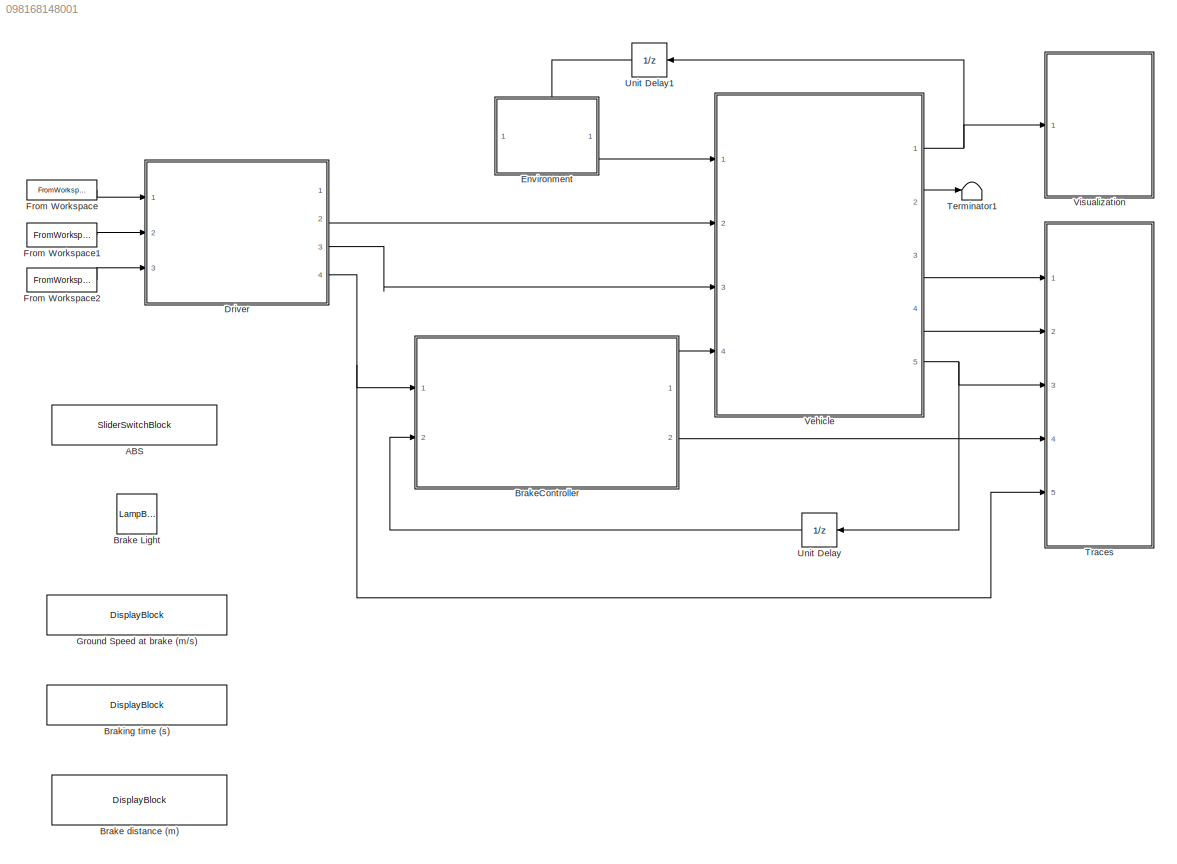
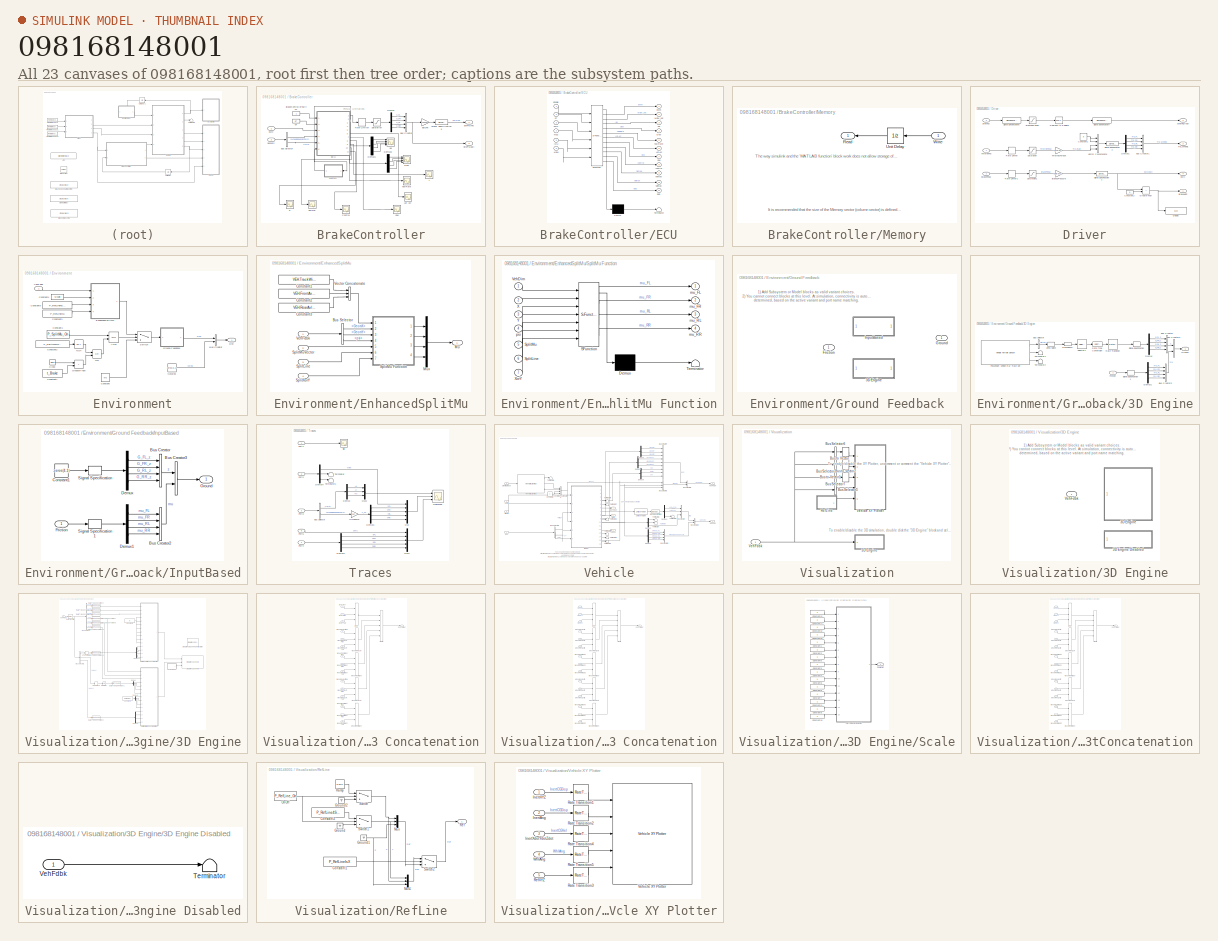
[diagram: thumbnail index - all 23 canvases of the model, root first then tree order]
MODEL slx_098168148001
KIND model
CONFIG AbsTol = auto
CONFIG EnableMultiTasking = off
CONFIG FixedStep = auto
CONFIG MaxStep = auto
CONFIG MinStep = auto
CONFIG RelTol = 1e-3
CONFIG SampleTimeConstraint = Unconstrained
CONFIG SolverName = daessc
CONFIG StartTime = 0.0
CONFIG StopTime = 20
WORKSPACE source: mxarray member
WORKSPACE VEH: object (value not decoded)
BLOCK [SliderSwitchBlock] ABS
  LabelPosition = Hide
BLOCK [LampBlock] Brake Light
  LabelPosition = Hide
BLOCK [DisplayBlock] Brake distance (m)
  Format = short
  LabelPosition = Hide
  Transparency = 1
BLOCK [SubSystem] BrakeController
  Ports = [2, 2]
  RequestExecContextInheritance = off
BLOCK [Gain] BrakeController/Bar2Pa
  Gain = 100000
BLOCK [Constant] BrakeController/BrakeControllerSwitch
  NameLocation = top
BLOCK [Outport] BrakeController/BrkPrs(Pa)
BLOCK [Outport] BrakeController/BrkPrs(bar)
  Port = 2
BLOCK [BusCreator] BrakeController/Bus Creator
  DisplayOption = bar
  InheritFromInputs = on
  Inputs = 4
  Ports = [4, 1]
BLOCK [BusSelector] BrakeController/Bus Selector
  OutputSignals = WheelSpeedSensors,IMU
  Ports = [1, 2]
BLOCK [Scope] BrakeController/Control
  Floating = off
  NumInputPorts = 1
  Ports = [1]
  ScopeSpecificationString = Simulink.scopes.TimeScopeBlockCfg('CurrentConfiguration', extmgr.ConfigurationSet(extmgr.Configuration('Core','General UI',true),extmgr.Configuration('Core','Source UI',true),extmgr.Configuration('Sources','WiredSimulink',true,'DataLoggingVariableName','ScopeData1'),extmgr.Configuration('Visuals','Time Domain',true,'SerializedDisplays',{struct('MinYLimReal','0.9','MaxYLimReal','1.1','YLabelReal','...<+3341ch>  <repeated x3 — deduplicated; at blocks: Control, YawRate, t>
BLOCK [Demux] BrakeController/Demux
  Ports = [1, 4]
BLOCK [Demux] BrakeController/Demux1
  Ports = [1, 4]
BLOCK [Demux] BrakeController/Demux2
  Ports = [1, 4]
BLOCK [Scope] BrakeController/Desl
  Floating = off
  NumInputPorts = 4
  Ports = [4]
  ScopeSpecificationString = Simulink.scopes.TimeScopeBlockCfg('CurrentConfiguration', extmgr.ConfigurationSet(extmgr.Configuration('Core','General UI',true),extmgr.Configuration('Core','Source UI',true),extmgr.Configuration('Sources','WiredSimulink',true,'DataLoggingVariableName','ScopeData1'),extmgr.Configuration('Visuals','Time Domain',true,'SerializedDisplays',{struct('MinYLimReal','-0.12372','MaxYLimReal','1.12354','YLab...<+3379ch>
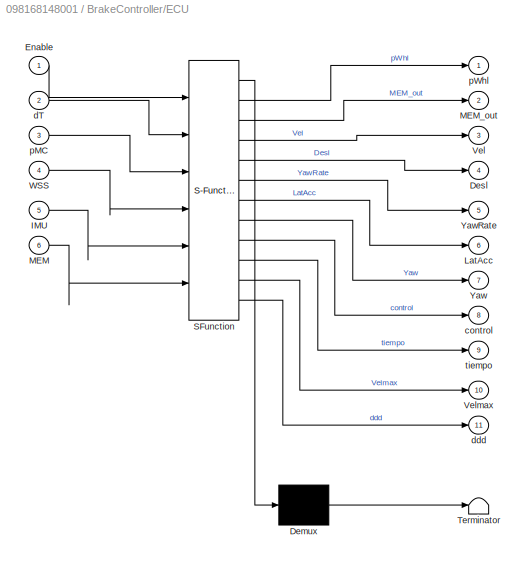
BLOCK [SubSystem] BrakeController/ECU
  ErrorFcn = Stateflow.Translate.translate
  PermitHierarchicalResolution = ExplicitOnly
  Ports = [6, 11]
  RequestExecContextInheritance = off
  SFBlockType = MATLAB Function
  TreatAsAtomicUnit = on
BLOCK [Demux] BrakeController/ECU/ Demux 
  Outputs = 1
  Ports = [1, 1]
BLOCK [S-Function] BrakeController/ECU/ SFunction 
  EnableBusSupport = on
  FunctionName = sf_sfun
  PortCounts = [6 12]
  Ports = [6, 12]
  SFcnIsStateOwnerBlock = off
  SFunctionDeploymentMode = off
  Tag = Stateflow S-Function 2
BLOCK [Terminator] BrakeController/ECU/ Terminator 
BLOCK [Outport] BrakeController/ECU/Desl
  Port = 4
BLOCK [Inport] BrakeController/ECU/Enable
BLOCK [Inport] BrakeController/ECU/IMU
  Port = 5
BLOCK [Outport] BrakeController/ECU/LatAcc
  Port = 6
BLOCK [Inport] BrakeController/ECU/MEM
  Port = 6
BLOCK [Outport] BrakeController/ECU/MEM_out
  Port = 2
BLOCK [Outport] BrakeController/ECU/Vel
  Port = 3
BLOCK [Outport] BrakeController/ECU/Velmax
  Port = 10
BLOCK [Inport] BrakeController/ECU/WSS
  Port = 4
BLOCK [Outport] BrakeController/ECU/Yaw
  Port = 7
BLOCK [Outport] BrakeController/ECU/YawRate
  Port = 5
BLOCK [Outport] BrakeController/ECU/control
  Port = 8
BLOCK [Inport] BrakeController/ECU/dT
  Port = 2
BLOCK [Outport] BrakeController/ECU/ddd
  Port = 11
BLOCK [Inport] BrakeController/ECU/pMC
  Port = 3
BLOCK [Outport] BrakeController/ECU/pWhl
BLOCK [Outport] BrakeController/ECU/tiempo
  Port = 9
BLOCK [Scope] BrakeController/Lat Acc
  Floating = off
  NumInputPorts = 1
  Ports = [1]
  ScopeSpecificationString = Simulink.scopes.TimeScopeBlockCfg('CurrentConfiguration', extmgr.ConfigurationSet(extmgr.Configuration('Core','General UI',true),extmgr.Configuration('Core','Source UI',true),extmgr.Configuration('Sources','WiredSimulink',true,'DataLoggingVariableName','ScopeData2'),extmgr.Configuration('Visuals','Time Domain',true,'SerializedDisplays',{struct('MinYLimReal','0.9','MaxYLimReal','1.1','YLabelReal','...<+3340ch>
BLOCK [SubSystem] BrakeController/Memory
  Ports = [1, 1]
  RequestExecContextInheritance = off
  ShowPortLabels = FromPortBlockName
BLOCK [Outport] BrakeController/Memory/Read
  NameLocation = top
BLOCK [UnitDelay] BrakeController/Memory/Unit Delay
  HasFrameUpgradeWarning = on
  InitialCondition = zeros(50,1)
  SampleTime = -1
BLOCK [Inport] BrakeController/Memory/Write
  NameLocation = top
BLOCK [RateLimiter] BrakeController/Rate Limiter
  FallingSlewLimit = -P_ABSPressureRateMax
  RisingSlewLimit = P_ABSPressureRateMax
  SampleTimeMode = inherited
BLOCK [Saturate] BrakeController/Saturation
  LowerLimit = 0
  UpperLimit = P_BrakePressureMax
BLOCK [Inport] BrakeController/Sensors
  Port = 2
BLOCK [SignalSpecification] BrakeController/Signal Specification5
  Unit = Pa
BLOCK [Scope] BrakeController/VElmax
  Floating = off
  NumInputPorts = 1
  Ports = [1]
  ScopeSpecificationString = Simulink.scopes.TimeScopeBlockCfg('CurrentConfiguration', extmgr.ConfigurationSet(extmgr.Configuration('Core','General UI',true),extmgr.Configuration('Core','Source UI',true),extmgr.Configuration('Sources','WiredSimulink',true,'DataLoggingVariableName','ScopeData2'),extmgr.Configuration('Visuals','Time Domain',true,'SerializedDisplays',{struct('MinYLimReal','0.9','MaxYLimReal','1.1','YLabelReal','...<+3341ch>
BLOCK [Scope] BrakeController/Vel
  Floating = off
  NumInputPorts = 4
  Ports = [4]
  ScopeSpecificationString = Simulink.scopes.TimeScopeBlockCfg('CurrentConfiguration', extmgr.ConfigurationSet(extmgr.Configuration('Core','General UI',true),extmgr.Configuration('Core','Source UI',true),extmgr.Configuration('Sources','WiredSimulink',true,'DataLoggingVariableName','ScopeData1'),extmgr.Configuration('Visuals','Time Domain',true,'SerializedDisplays',{struct('MinYLimReal','-2.53298','MaxYLimReal','21.96458','YLa...<+3384ch>
BLOCK [Scope] BrakeController/Yaw
  Floating = off
  NumInputPorts = 1
  Ports = [1]
  ScopeSpecificationString = Simulink.scopes.TimeScopeBlockCfg('CurrentConfiguration', extmgr.ConfigurationSet(extmgr.Configuration('Core','General UI',true),extmgr.Configuration('Core','Source UI',true),extmgr.Configuration('Sources','WiredSimulink',true,'DataLoggingVariableName','ScopeData1'),extmgr.Configuration('Visuals','Time Domain',true,'SerializedDisplays',{struct('MinYLimReal','-0.32471','MaxYLimReal','0.10037','YLab...<+3354ch>
BLOCK [Scope] BrakeController/YawRate
  Floating = off
  NumInputPorts = 1
  Ports = [1]
BLOCK [Scope] BrakeController/d
  Floating = off
  NumInputPorts = 1
  Ports = [1]
  ScopeSpecificationString = Simulink.scopes.TimeScopeBlockCfg('CurrentConfiguration', extmgr.ConfigurationSet(extmgr.Configuration('Core','General UI',true),extmgr.Configuration('Core','Source UI',true),extmgr.Configuration('Sources','WiredSimulink',true,'DataLoggingVariableName','ScopeData3'),extmgr.Configuration('Visuals','Time Domain',true,'SerializedDisplays',{struct('MinYLimReal','-7.76519','MaxYLimReal','69.88667','YLa...<+3354ch>
BLOCK [Constant] BrakeController/dT
  Value = dT
BLOCK [Inport] BrakeController/pMC
BLOCK [Scope] BrakeController/t
  Floating = off
  NumInputPorts = 1
  Ports = [1]
BLOCK [DisplayBlock] Braking time (s)
  Format = short
  LabelPosition = Hide
  Transparency = 1
BLOCK [SubSystem] Driver
  Ports = [3, 4]
  RequestExecContextInheritance = off
BLOCK [Gain] Driver/Brake2Pressure
  Gain = P_BrakePressureMax
BLOCK [Outport] Driver/BrakeLight
BLOCK [Inport] Driver/BrakePedal
  Port = 2
BLOCK [BusCreator] Driver/Bus Creator1
  DisplayOption = bar
  InheritFromInputs = on
  Inputs = 4
  Ports = [4, 1]
BLOCK [Constant] Driver/Constant1
  Value = 0
BLOCK [Constant] Driver/Constant2
  Value = 0
BLOCK [Reference] Driver/Degrees to Radians  REF=simulink_extras/Transformations/Degrees to
Radians
  Ports = [1, 1]
  SourceBlock = simulink_extras/Transformations/Degrees to\nRadians
  SourceProductBaseCode = SL
  SourceType = DegreesToRadians
BLOCK [Demux] Driver/Demux1
  Ports = [1, 4]
BLOCK [Display] Driver/Display
  Decimation = 1
  Ports = [1]
BLOCK [RelationalOperator] Driver/GreaterThan
  InputSameDT = off
  Operator = >
  OutDataTypeStr = boolean
  Ports = [2, 1]
  RndMeth = Simplest
BLOCK [RateLimiter] Driver/Rate Limiter
  FallingSlewLimit = -P_PedalTravelRateMax
  RisingSlewLimit = P_PedalTravelRateMax
  SampleTimeMode = inherited
BLOCK [RateLimiter] Driver/Rate Limiter1
  FallingSlewLimit = -P_PedalTravelRateMax
  RisingSlewLimit = P_PedalTravelRateMax
  SampleTimeMode = inherited
BLOCK [Saturate] Driver/Saturation
  LowerLimit = 0
  UpperLimit = 1
BLOCK [Saturate] Driver/Saturation1
  LowerLimit = 0
  UpperLimit = 1
BLOCK [SignalSpecification] Driver/Signal Specification2
  Unit = N*m
BLOCK [SignalSpecification] Driver/Signal Specification4
  Unit = bar
BLOCK [SignalSpecification] Driver/Signal Specification6
  Unit = deg
BLOCK [SignalSpecification] Driver/Signal Specification7
  Unit = rad
BLOCK [Inport] Driver/Steering
  Port = 3
BLOCK [Outport] Driver/Steering(rad)
  Port = 2
BLOCK [Saturate] Driver/SteeringRange
  LowerLimit = -P_SteeringMax
  UpperLimit = P_SteeringMax
BLOCK [Gain] Driver/Throttle2Torque
  Gain = P_TorqueMax
BLOCK [Inport] Driver/ThrottlePos
BLOCK [Outport] Driver/Trq_Wheels
  Port = 3
BLOCK [Concatenate] Driver/Vector Concatenate
  NumInputs = 4
  Ports = [4, 1]
BLOCK [Outport] Driver/pMC
  Port = 4
BLOCK [SubSystem] Environment
  PortSchema = {"entries":[{"content":{"sides":[{"content":{"connectorIds":[]},"type":"ConnectorPlacement.EquallySpacedRectSide","uuid":"db779631-5d12-4b7d-908c-0777e0f771c7"},{"content":{"connectorIds":["Out1"],"side":"RIGHT"},"type":"ConnectorPlacement.EquallySpacedRectSide","uuid":"a6ec5440-a008-4eb7-8ac9-30b9ee520514"},{"content":{"connectorIds":["In1"],"side":"TOP"},"type":"ConnectorPlacement.EquallySpacedR...<+384ch>
  Ports = [1, 1]
  RequestExecContextInheritance = off
BLOCK [Logic] Environment/AND
  AllPortsSameDT = off
  IconShape = distinctive
  OutDataTypeStr = boolean
  Ports = [2, 1]
BLOCK [BusCreator] Environment/Bus Creator
  DisplayOption = bar
  InheritFromInputs = on
  Inputs = 2
  Ports = [2, 1]
BLOCK [Clock] Environment/Clock
BLOCK [Constant] Environment/Constant
  Value = Mu
BLOCK [Constant] Environment/Constant1
  Value = P_SplitMu_On
BLOCK [Constant] Environment/Constant2
  Value = P_SplitMuOnlyAtBraking
BLOCK [Constant] Environment/Constant3
  Value = P_RefLineIsX
BLOCK [Constant] Environment/Constant4
  Value = MuSplit
BLOCK [Constant] Environment/Constant5
  Value = P_RefLine4SplitMue
BLOCK [Constant] Environment/Constant7
  Value = t_Brake
BLOCK [SubSystem] Environment/EnhancedSplitMu
  Ports = [4, 1]
  RequestExecContextInheritance = off
BLOCK [BusSelector] Environment/EnhancedSplitMu/Bus Selector
  OutputSignals = Body.GeomX,Body.GeomY,Body.psi
  Ports = [1, 3]
BLOCK [Constant] Environment/EnhancedSplitMu/Constant1
  Value = VEH.TrackWidth
BLOCK [Constant] Environment/EnhancedSplitMu/Constant2
  Value = VEH.FrontAxlePositionfromCG
BLOCK [Constant] Environment/EnhancedSplitMu/Constant3
  Value = VEH.RearAxlePositionfromCG
BLOCK [Outport] Environment/EnhancedSplitMu/Mu
BLOCK [Mux] Environment/EnhancedSplitMu/Mux
  DisplayOption = bar
  Ports = [4, 1]
BLOCK [Inport] Environment/EnhancedSplitMu/SplitLine
  Port = 3
BLOCK [SubSystem] Environment/EnhancedSplitMu/SplitMu Function
  ErrorFcn = Stateflow.Translate.translate
  PermitHierarchicalResolution = ExplicitOnly
  Ports = [7, 4]
  RequestExecContextInheritance = off
  SFBlockType = MATLAB Function
  TreatAsAtomicUnit = on
BLOCK [Demux] Environment/EnhancedSplitMu/SplitMu Function/ Demux 
  Outputs = 1
  Ports = [1, 1]
BLOCK [S-Function] Environment/EnhancedSplitMu/SplitMu Function/ SFunction 
  EnableBusSupport = on
  FunctionName = sf_sfun
  PortCounts = [7 5]
  Ports = [7, 5]
  SFcnIsStateOwnerBlock = off
  SFunctionDeploymentMode = off
  Tag = Stateflow S-Function 1
BLOCK [Terminator] Environment/EnhancedSplitMu/SplitMu Function/ Terminator 
BLOCK [Inport] Environment/EnhancedSplitMu/SplitMu Function/SplitLine
  Port = 6
BLOCK [Inport] Environment/EnhancedSplitMu/SplitMu Function/SplitMu
  Port = 5
BLOCK [Inport] Environment/EnhancedSplitMu/SplitMu Function/VehDim
BLOCK [Inport] Environment/EnhancedSplitMu/SplitMu Function/X
  Port = 2
BLOCK [Inport] Environment/EnhancedSplitMu/SplitMu Function/XorY
  Port = 7
BLOCK [Inport] Environment/EnhancedSplitMu/SplitMu Function/Y
  Port = 3
BLOCK [Outport] Environment/EnhancedSplitMu/SplitMu Function/mu_FL
BLOCK [Outport] Environment/EnhancedSplitMu/SplitMu Function/mu_FR
  Port = 2
BLOCK [Outport] Environment/EnhancedSplitMu/SplitMu Function/mu_RL
  Port = 3
BLOCK [Outport] Environment/EnhancedSplitMu/SplitMu Function/mu_RR
  Port = 4
BLOCK [Inport] Environment/EnhancedSplitMu/SplitMu Function/psi
  Port = 4
BLOCK [Inport] Environment/EnhancedSplitMu/SplitMuVector
  Port = 2
  PortDimensions = 2
BLOCK [Inport] Environment/EnhancedSplitMu/SplitXorY
  Port = 4
BLOCK [Concatenate] Environment/EnhancedSplitMu/Vector Concatenate
  NumInputs = 3
  Ports = [3, 1]
BLOCK [Inport] Environment/EnhancedSplitMu/VehFdbk
BLOCK [Outport] Environment/Env
BLOCK [RelationalOperator] Environment/GreaterThan
  InputSameDT = off
  Operator = >
  OutDataTypeStr = boolean
  Ports = [2, 1]
  RndMeth = Simplest
BLOCK [SubSystem] Environment/Ground Feedback
  LabelModeActiveChoice = 1
  Ports = [1, 1]
  RequestExecContextInheritance = off
  Variant = on
  VariantControlMode = label
BLOCK [SubSystem] Environment/Ground Feedback/3D Engine
  Ports = [1, 1]
  RequestExecContextInheritance = off
  VariantControl = 1
BLOCK [BusCreator] Environment/Ground Feedback/3D Engine/Bus Creator
  DisplayOption = bar
  InheritFromInputs = on
  Inputs = 4
  Ports = [4, 1]
BLOCK [BusCreator] Environment/Ground Feedback/3D Engine/Bus Creator2
  DisplayOption = bar
  InheritFromInputs = on
  Inputs = 4
  Ports = [4, 1]
BLOCK [BusCreator] Environment/Ground Feedback/3D Engine/Bus Creator3
  DisplayOption = bar
  InheritFromInputs = on
  Inputs = 2
  Ports = [2, 1]
BLOCK [BusSelector] Environment/Ground Feedback/3D Engine/Bus Selector
  OutputSignals = HitLoc
  Ports = [1, 1]
BLOCK [DataTypeConversion] Environment/Ground Feedback/3D Engine/Data Type Conversion
  RndMeth = Floor
  SaturateOnIntegerOverflow = off
BLOCK [Demux] Environment/Ground Feedback/3D Engine/Demux
  Ports = [1, 4]
BLOCK [Demux] Environment/Ground Feedback/3D Engine/Demux1
  Ports = [1, 4]
BLOCK [Inport] Environment/Ground Feedback/3D Engine/Friction
BLOCK [Outport] Environment/Ground Feedback/3D Engine/Ground
  VectorParamsAs1DForOutWhenUnconnected = off
BLOCK [Reference] Environment/Ground Feedback/3D Engine/Passenger Vehicle Ray Trace Set  REF=sim3dlib/Vehicle Terrain Sensor
  Ports = [0, 3]
  Priority = 1
  SourceBlock = sim3dlib/Vehicle Terrain Sensor
  SourceProductBaseCode = DR,UV,VE
  SourceType = Vehicle Terrain Sensor
BLOCK [RateTransition] Environment/Ground Feedback/3D Engine/Rate Transition
  Deterministic = off
  Integrity = off
  OutPortSampleTimeOpt = Inherit
BLOCK [Reshape] Environment/Ground Feedback/3D Engine/Reshape10
  OutputDimensionality = Row vector (2-D)
  Ports = [1, 1]
BLOCK [Selector] Environment/Ground Feedback/3D Engine/Selector1
  IndexOptions = Index vector (dialog)
  Indices = [2:5]
  InputPortWidth = 5
  OutputSizes = 1
  Ports = [1, 1]
BLOCK [SignalSpecification] Environment/Ground Feedback/3D Engine/Signal Specification
  Unit = m
BLOCK [SignalSpecification] Environment/Ground Feedback/3D Engine/Signal Specification1
  Unit = 1
BLOCK [Terminator] Environment/Ground Feedback/3D Engine/Terminator1
BLOCK [Terminator] Environment/Ground Feedback/3D Engine/Terminator2
BLOCK [Selector] Environment/Ground Feedback/3D Engine/Zend Select
  IndexOptions = Select all,Index vector (dialog)
  Indices = [1 3],3
  InputPortWidth = 3
  NumberOfDimensions = 2
  OutputSizes = 1,1
  Ports = [1, 1]
BLOCK [Inport] Environment/Ground Feedback/Friction
BLOCK [Outport] Environment/Ground Feedback/Ground
  VectorParamsAs1DForOutWhenUnconnected = off
BLOCK [SubSystem] Environment/Ground Feedback/InputBased
  Ports = [1, 1]
  RequestExecContextInheritance = off
  VariantControl = 0
BLOCK [BusCreator] Environment/Ground Feedback/InputBased/Bus Creator
  DisplayOption = bar
  InheritFromInputs = on
  Inputs = 4
  Ports = [4, 1]
BLOCK [BusCreator] Environment/Ground Feedback/InputBased/Bus Creator2
  DisplayOption = bar
  InheritFromInputs = on
  Inputs = 4
  Ports = [4, 1]
BLOCK [BusCreator] Environment/Ground Feedback/InputBased/Bus Creator3
  DisplayOption = bar
  InheritFromInputs = on
  Inputs = 2
  Ports = [2, 1]
BLOCK [Constant] Environment/Ground Feedback/InputBased/Constant1
  Value = zeros(4,1)
BLOCK [Demux] Environment/Ground Feedback/InputBased/Demux
  Ports = [1, 4]
BLOCK [Demux] Environment/Ground Feedback/InputBased/Demux1
  Ports = [1, 4]
BLOCK [Inport] Environment/Ground Feedback/InputBased/Friction
BLOCK [Outport] Environment/Ground Feedback/InputBased/Ground
  VectorParamsAs1DForOutWhenUnconnected = off
BLOCK [SignalSpecification] Environment/Ground Feedback/InputBased/Signal Specification
  Unit = m
BLOCK [SignalSpecification] Environment/Ground Feedback/InputBased/Signal Specification1
  Unit = 1
BLOCK [Logic] Environment/NOT
  AllPortsSameDT = off
  IconShape = distinctive
  Operator = NOT
  OutDataTypeStr = boolean
  Ports = [1, 1]
BLOCK [Constant] Environment/NoWind
  Value = zeros(3,1)
BLOCK [Logic] Environment/OR
  AllPortsSameDT = off
  IconShape = distinctive
  Operator = OR
  OutDataTypeStr = boolean
  Ports = [2, 1]
BLOCK [Switch] Environment/Switch
  Criteria = u2 > Threshold
  InputSameDT = off
  SaturateOnIntegerOverflow = off
BLOCK [Inport] Environment/VehFdbk
BLOCK [FromWorkspace] From Workspace
  SampleTime = dT
  VariableName = Drv_ThrPedal
BLOCK [FromWorkspace] From Workspace1
  SampleTime = dT
  VariableName = Drv_BrkPedal
BLOCK [FromWorkspace] From Workspace2
  SampleTime = dT
  VariableName = Drv_Steering
BLOCK [DisplayBlock] Ground Speed at brake (m//s)
  Format = short
  LabelPosition = Hide
  Transparency = 1
BLOCK [Terminator] Terminator1
BLOCK [SubSystem] Traces
  Ports = [5]
  RequestExecContextInheritance = off
BLOCK [BusSelector] Traces/Bus Selector
  OutputSignals = IMU,WheelSpeedSensors
  Ports = [1, 2]
BLOCK [Demux] Traces/Demux
  Outputs = 3
  Ports = [1, 3]
BLOCK [Demux] Traces/Demux1
  Ports = [1, 4]
BLOCK [Demux] Traces/Demux2
  Ports = [1, 4]
BLOCK [Demux] Traces/Demux4
  Outputs = 3
  Ports = [1, 3]
BLOCK [Scope] Traces/MainScope
  Floating = off
  NumInputPorts = 3
  Ports = [3]
  ScopeSpecificationString = Simulink.scopes.TimeScopeBlockCfg('CurrentConfiguration', extmgr.ConfigurationSet(extmgr.Configuration('Core','General UI',true),extmgr.Configuration('Core','Source UI',true),extmgr.Configuration('Sources','WiredSimulink',true,'DataLoggingVariableName','ScopeData1'),extmgr.Configuration('Visuals','Time Domain',true,'SerializedDisplays',{struct('MinYLimReal','-10.55775','MaxYLimReal','10.0171','YLa...<+4232ch>
BLOCK [Mux] Traces/Mux
  DisplayOption = bar
  Inputs = 5
  Ports = [5, 1]
BLOCK [Mux] Traces/Mux2
  DisplayOption = bar
  Inputs = 3
  Ports = [3, 1]
BLOCK [Mux] Traces/Mux3
  DisplayOption = bar
  Inputs = 5
  Ports = [5, 1]
BLOCK [Gain] Traces/Omega2Vx
  Gain = 0.37
BLOCK [Inport] Traces/Port1
BLOCK [Inport] Traces/Port2
  Port = 2
BLOCK [Inport] Traces/Port3
  Port = 3
BLOCK [Inport] Traces/Port4
  Port = 4
BLOCK [Inport] Traces/Port5
  Port = 5
BLOCK [Scope] Traces/Slip
  Floating = off
  NumInputPorts = 1
  Ports = [1]
  ScopeSpecificationString = Simulink.scopes.TimeScopeBlockCfg('CurrentConfiguration', extmgr.ConfigurationSet(extmgr.Configuration('Core','General UI',true),extmgr.Configuration('Core','Source UI',true),extmgr.Configuration('Sources','WiredSimulink',true,'DataLoggingVariableName','ScopeData1'),extmgr.Configuration('Visuals','Time Domain',true,'SerializedDisplays',{struct('MinYLimReal','-1.25','MaxYLimReal','1.25','YLabelReal...<+1708ch>
BLOCK [Terminator] Traces/Terminator
BLOCK [Terminator] Traces/Terminator1
BLOCK [UnitDelay] Unit Delay
  HasFrameUpgradeWarning = on
  SampleTime = -1
BLOCK [UnitDelay] Unit Delay1
  HasFrameUpgradeWarning = on
  NameLocation = top
  SampleTime = -1
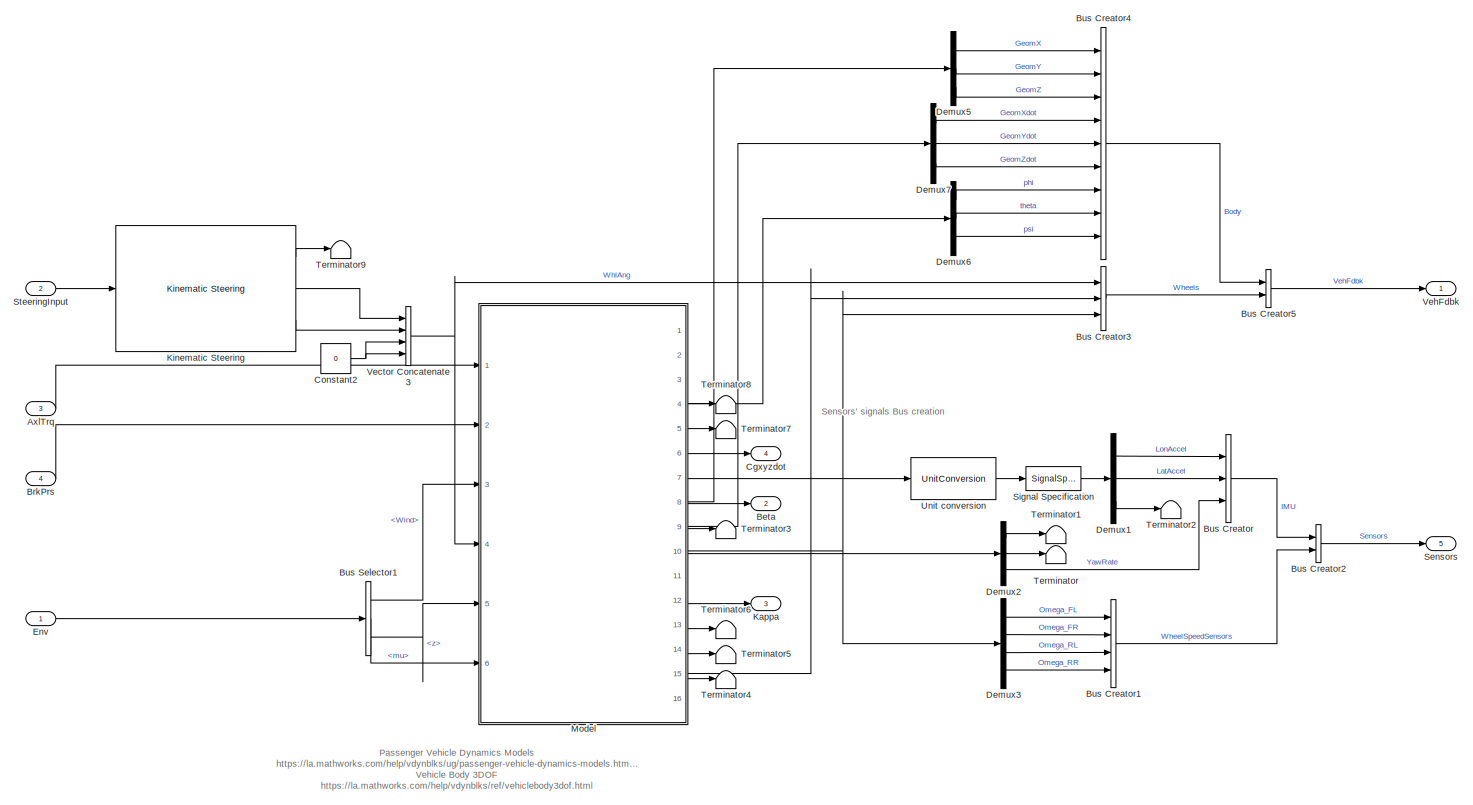
[diagram: Vehicle - part 1/1, most of the canvas]
BLOCK [SubSystem] Vehicle
  Ports = [4, 5]
  RequestExecContextInheritance = off
BLOCK [Inport] Vehicle/AxlTrq
  Port = 3
BLOCK [Outport] Vehicle/Beta
  Port = 2
BLOCK [Inport] Vehicle/BrkPrs
  Port = 4
BLOCK [BusCreator] Vehicle/Bus Creator
  DisplayOption = bar
  InheritFromInputs = on
  Inputs = 3
  Ports = [3, 1]
BLOCK [BusCreator] Vehicle/Bus Creator1
  DisplayOption = bar
  InheritFromInputs = on
  Inputs = 4
  Ports = [4, 1]
BLOCK [BusCreator] Vehicle/Bus Creator2
  DisplayOption = bar
  InheritFromInputs = on
  Inputs = 2
  Ports = [2, 1]
BLOCK [BusCreator] Vehicle/Bus Creator3
  DisplayOption = bar
  InheritFromInputs = on
  Inputs = 3
  Ports = [3, 1]
BLOCK [BusCreator] Vehicle/Bus Creator4
  DisplayOption = bar
  InheritFromInputs = on
  Inputs = 9
  Ports = [9, 1]
BLOCK [BusCreator] Vehicle/Bus Creator5
  DisplayOption = bar
  InheritFromInputs = on
  Inputs = 2
  Ports = [2, 1]
BLOCK [BusSelector] Vehicle/Bus Selector1
  OutputSignals = Wind,Gnd.mu,Gnd.z
  Ports = [1, 3]
BLOCK [Outport] Vehicle/Cgxyzdot
  Port = 4
BLOCK [Constant] Vehicle/Constant2
  Value = 0
BLOCK [Demux] Vehicle/Demux1
  Outputs = 3
  Ports = [1, 3]
BLOCK [Demux] Vehicle/Demux2
  Outputs = 3
  Ports = [1, 3]
BLOCK [Demux] Vehicle/Demux3
  Ports = [1, 4]
BLOCK [Demux] Vehicle/Demux5
  Outputs = 3
  Ports = [1, 3]
BLOCK [Demux] Vehicle/Demux6
  Outputs = 3
  Ports = [1, 3]
BLOCK [Demux] Vehicle/Demux7
  Outputs = 3
  Ports = [1, 3]
BLOCK [Inport] Vehicle/Env
BLOCK [Outport] Vehicle/Kappa
  Port = 3
BLOCK [Reference] Vehicle/Kinematic Steering  REF=vehdynlibsteering/Kinematic Steering
  Ports = [1, 3]
  SourceBlock = vehdynlibsteering/Kinematic Steering
  SourceProductBaseCode = VE
  SourceType = Kinematic Steering
BLOCK [ModelReference] Vehicle/Model
  ModelNameDialog = PassVeh7DOF.slx
  ModelReferenceVersion = 2.14
  PortSchema = {"entries":[{"content":{"sides":[{"content":{"connectorIds":["In4","In1","In2","In3","In6","In5"]},"type":"ConnectorPlacement.EquallySpacedRectSide","uuid":"a5af96ca-5392-45ae-a018-53085440adb3"},{"content":{"connectorIds":["Out8","Out9","Out4","Out2","Out3","Out1","Out6","Out7","Out16","Out5","Out10","Out11","Out12","Out13","Out14","Out15"],"side":"RIGHT"},"type":"ConnectorPlacement.EquallySpaced...<+384ch>
  Ports = [6, 16]
BLOCK [Outport] Vehicle/Sensors
  Port = 5
BLOCK [SignalSpecification] Vehicle/Signal Specification
  Unit = m/s^2
BLOCK [Inport] Vehicle/SteeringInput
  Port = 2
BLOCK [Terminator] Vehicle/Terminator
BLOCK [Terminator] Vehicle/Terminator1
BLOCK [Terminator] Vehicle/Terminator2
BLOCK [Terminator] Vehicle/Terminator3
BLOCK [Terminator] Vehicle/Terminator4
BLOCK [Terminator] Vehicle/Terminator5
BLOCK [Terminator] Vehicle/Terminator6
BLOCK [Terminator] Vehicle/Terminator7
BLOCK [Terminator] Vehicle/Terminator8
BLOCK [Terminator] Vehicle/Terminator9
BLOCK [UnitConversion] Vehicle/Unit conversion
BLOCK [Concatenate] Vehicle/Vector Concatenate3
  NumInputs = 4
  Ports = [4, 1]
BLOCK [Outport] Vehicle/VehFdbk
BLOCK [SubSystem] Visualization
  Ports = [1]
  RequestExecContextInheritance = off
BLOCK [SubSystem] Visualization/3D Engine
  AttributesFormatString = %<SceneDesc>\n%<engine3D>
  LabelModeActiveChoice = 1
  Ports = [1]
  RequestExecContextInheritance = off
  Variant = on
  VariantControlMode = label
BLOCK [SubSystem] Visualization/3D Engine/3D Engine
  Ports = [1]
  RequestExecContextInheritance = off
  VariantControl = 1
BLOCK [SubSystem] Visualization/3D Engine/3D Engine Disabled
  Ports = [1]
  RequestExecContextInheritance = off
  VariantControl = 0
BLOCK [Terminator] Visualization/3D Engine/3D Engine Disabled/Terminator
BLOCK [Inport] Visualization/3D Engine/3D Engine Disabled/VehFdbk
BLOCK [BusSelector] Visualization/3D Engine/3D Engine/Bus Selector
  OutputSignals = Body.GeomX,Body.GeomY,Body.GeomZ,Body.phi,Body.theta,Body.psi
  Ports = [1, 6]
BLOCK [BusSelector] Visualization/3D Engine/3D Engine/Bus Selector2
  OutputSignals = Wheels.z,Wheels.Omega,Wheels.WhlAng
  Ports = [1, 3]
BLOCK [Constant] Visualization/3D Engine/3D Engine/Constant1
  OutDataTypeStr = single
  Value = zeros(4,1)
BLOCK [Constant] Visualization/3D Engine/3D Engine/Constant2
  OutDataTypeStr = single
  Value = 0
BLOCK [DataTypeConversion] Visualization/3D Engine/3D Engine/Data Type Conversion1
  OutDataTypeStr = single
  RndMeth = Floor
  SaturateOnIntegerOverflow = off
BLOCK [DataTypeConversion] Visualization/3D Engine/3D Engine/Data Type Conversion10
  OutDataTypeStr = single
  RndMeth = Floor
  SaturateOnIntegerOverflow = off
BLOCK [DataTypeConversion] Visualization/3D Engine/3D Engine/Data Type Conversion12
  OutDataTypeStr = single
  RndMeth = Floor
  SaturateOnIntegerOverflow = off
BLOCK [DataTypeConversion] Visualization/3D Engine/3D Engine/Data Type Conversion4
  OutDataTypeStr = single
  RndMeth = Floor
  SaturateOnIntegerOverflow = off
BLOCK [DataTypeConversion] Visualization/3D Engine/3D Engine/Data Type Conversion5
  OutDataTypeStr = single
  RndMeth = Floor
  SaturateOnIntegerOverflow = off
BLOCK [DataTypeConversion] Visualization/3D Engine/3D Engine/Data Type Conversion6
  OutDataTypeStr = single
  RndMeth = Floor
  SaturateOnIntegerOverflow = off
BLOCK [DataTypeConversion] Visualization/3D Engine/3D Engine/Data Type Conversion7
  OutDataTypeStr = single
  RndMeth = Floor
  SaturateOnIntegerOverflow = off
BLOCK [DataTypeConversion] Visualization/3D Engine/3D Engine/Data Type Conversion8
  OutDataTypeStr = single
  RndMeth = Floor
  SaturateOnIntegerOverflow = off
BLOCK [DataTypeConversion] Visualization/3D Engine/3D Engine/Data Type Conversion9
  OutDataTypeStr = single
  RndMeth = Floor
  SaturateOnIntegerOverflow = off
BLOCK [Demux] Visualization/3D Engine/3D Engine/Demux
  Ports = [1, 4]
BLOCK [Demux] Visualization/3D Engine/3D Engine/Demux1
  Ports = [1, 4]
BLOCK [Demux] Visualization/3D Engine/3D Engine/Demux2
  Ports = [1, 4]
BLOCK [Demux] Visualization/3D Engine/3D Engine/Demux3
  Ports = [1, 4]
BLOCK [Integrator] Visualization/3D Engine/3D Engine/Integrator
  Ports = [1, 1]
  WrapState = on
  WrappedStateLowerValue = 0
  WrappedStateUpperValue = 2*pi
  ZeroCross = off
BLOCK [SubSystem] Visualization/3D Engine/3D Engine/Part Rotation Concatenation
  Ports = [15, 1]
  RequestExecContextInheritance = off
BLOCK [Concatenate] Visualization/3D Engine/3D Engine/Part Rotation Concatenation/AllParts
  Mode = Multidimensional array
  NumInputs = 5
  Ports = [5, 1]
BLOCK [Concatenate] Visualization/3D Engine/3D Engine/Part Rotation Concatenation/Body
  ConcatenateDimension = 2
  Mode = Multidimensional array
  NumInputs = 3
  Ports = [3, 1]
BLOCK [Inport] Visualization/3D Engine/3D Engine/Part Rotation Concatenation/Body Ptich
  Port = 2
BLOCK [Inport] Visualization/3D Engine/3D Engine/Part Rotation Concatenation/Body Roll
BLOCK [Inport] Visualization/3D Engine/3D Engine/Part Rotation Concatenation/Body Yaw
  Port = 3
BLOCK [Outport] Visualization/3D Engine/3D Engine/Part Rotation Concatenation/ConcatOut
  VectorParamsAs1DForOutWhenUnconnected = off
BLOCK [Concatenate] Visualization/3D Engine/3D Engine/Part Rotation Concatenation/WheelFrontLeft
  ConcatenateDimension = 2
  Mode = Multidimensional array
  NumInputs = 3
  Ports = [3, 1]
BLOCK [Inport] Visualization/3D Engine/3D Engine/Part Rotation Concatenation/WheelFrontLeft Pitch
  Port = 4
BLOCK [Inport] Visualization/3D Engine/3D Engine/Part Rotation Concatenation/WheelFrontLeft Roll
  Port = 8
BLOCK [Inport] Visualization/3D Engine/3D Engine/Part Rotation Concatenation/WheelFrontLeft Yaw
  Port = 12
BLOCK [Concatenate] Visualization/3D Engine/3D Engine/Part Rotation Concatenation/WheelFrontRight
  ConcatenateDimension = 2
  Mode = Multidimensional array
  NumInputs = 3
  Ports = [3, 1]
BLOCK [Inport] Visualization/3D Engine/3D Engine/Part Rotation Concatenation/WheelFrontRight Pitch
  Port = 5
BLOCK [Inport] Visualization/3D Engine/3D Engine/Part Rotation Concatenation/WheelFrontRight Roll
  Port = 9
BLOCK [Inport] Visualization/3D Engine/3D Engine/Part Rotation Concatenation/WheelFrontRight Yaw
  Port = 13
BLOCK [Concatenate] Visualization/3D Engine/3D Engine/Part Rotation Concatenation/WheelRearLeft
  ConcatenateDimension = 2
  Mode = Multidimensional array
  NumInputs = 3
  Ports = [3, 1]
BLOCK [Inport] Visualization/3D Engine/3D Engine/Part Rotation Concatenation/WheelRearLeft Pitch
  Port = 6
BLOCK [Inport] Visualization/3D Engine/3D Engine/Part Rotation Concatenation/WheelRearLeft Roll
  Port = 10
BLOCK [Inport] Visualization/3D Engine/3D Engine/Part Rotation Concatenation/WheelRearLeft Yaw
  Port = 14
BLOCK [Concatenate] Visualization/3D Engine/3D Engine/Part Rotation Concatenation/WheelRearRight
  ConcatenateDimension = 2
  Mode = Multidimensional array
  NumInputs = 3
  Ports = [3, 1]
BLOCK [Inport] Visualization/3D Engine/3D Engine/Part Rotation Concatenation/WheelRearRight Ptich
  Port = 7
BLOCK [Inport] Visualization/3D Engine/3D Engine/Part Rotation Concatenation/WheelRearRight Roll
  Port = 11
BLOCK [Inport] Visualization/3D Engine/3D Engine/Part Rotation Concatenation/WheelRearRight Yaw
  Port = 15
BLOCK [SubSystem] Visualization/3D Engine/3D Engine/Part Translation Concatenation
  Ports = [15, 1]
  RequestExecContextInheritance = off
BLOCK [Concatenate] Visualization/3D Engine/3D Engine/Part Translation Concatenation/AllParts
  Mode = Multidimensional array
  NumInputs = 5
  Ports = [5, 1]
BLOCK [Concatenate] Visualization/3D Engine/3D Engine/Part Translation Concatenation/Body
  ConcatenateDimension = 2
  Mode = Multidimensional array
  NumInputs = 3
  Ports = [3, 1]
BLOCK [Inport] Visualization/3D Engine/3D Engine/Part Translation Concatenation/BodyX
BLOCK [Inport] Visualization/3D Engine/3D Engine/Part Translation Concatenation/BodyY
  Port = 2
BLOCK [Inport] Visualization/3D Engine/3D Engine/Part Translation Concatenation/BodyZ
  Port = 3
BLOCK [Outport] Visualization/3D Engine/3D Engine/Part Translation Concatenation/ConcatOut
  VectorParamsAs1DForOutWhenUnconnected = off
BLOCK [Concatenate] Visualization/3D Engine/3D Engine/Part Translation Concatenation/WheelFrontLeft
  ConcatenateDimension = 2
  Mode = Multidimensional array
  NumInputs = 3
  Ports = [3, 1]
BLOCK [Inport] Visualization/3D Engine/3D Engine/Part Translation Concatenation/WheelFrontLeftX
  Port = 4
BLOCK [Inport] Visualization/3D Engine/3D Engine/Part Translation Concatenation/WheelFrontLeftY
  Port = 8
BLOCK [Inport] Visualization/3D Engine/3D Engine/Part Translation Concatenation/WheelFrontLeftZ
  Port = 12
BLOCK [Concatenate] Visualization/3D Engine/3D Engine/Part Translation Concatenation/WheelFrontRight
  ConcatenateDimension = 2
  Mode = Multidimensional array
  NumInputs = 3
  Ports = [3, 1]
BLOCK [Inport] Visualization/3D Engine/3D Engine/Part Translation Concatenation/WheelFrontRightX
  Port = 5
BLOCK [Inport] Visualization/3D Engine/3D Engine/Part Translation Concatenation/WheelFrontRightY
  Port = 9
BLOCK [Inport] Visualization/3D Engine/3D Engine/Part Translation Concatenation/WheelFrontRightZ
  Port = 13
BLOCK [Concatenate] Visualization/3D Engine/3D Engine/Part Translation Concatenation/WheelRearLeft
  ConcatenateDimension = 2
  Mode = Multidimensional array
  NumInputs = 3
  Ports = [3, 1]
BLOCK [Inport] Visualization/3D Engine/3D Engine/Part Translation Concatenation/WheelRearLeftX
  Port = 6
BLOCK [Inport] Visualization/3D Engine/3D Engine/Part Translation Concatenation/WheelRearLeftY
  Port = 10
BLOCK [Inport] Visualization/3D Engine/3D Engine/Part Translation Concatenation/WheelRearLeftZ
  Port = 14
BLOCK [Concatenate] Visualization/3D Engine/3D Engine/Part Translation Concatenation/WheelRearRight
  ConcatenateDimension = 2
  Mode = Multidimensional array
  NumInputs = 3
  Ports = [3, 1]
BLOCK [Inport] Visualization/3D Engine/3D Engine/Part Translation Concatenation/WheelRearRightX
  Port = 7
BLOCK [Inport] Visualization/3D Engine/3D Engine/Part Translation Concatenation/WheelRearRightY
  Port = 11
BLOCK [Inport] Visualization/3D Engine/3D Engine/Part Translation Concatenation/WheelRearRightZ
  Port = 15
BLOCK [RateTransition] Visualization/3D Engine/3D Engine/Rate Transition
  OutPortSampleTime = dt3D
BLOCK [SubSystem] Visualization/3D Engine/3D Engine/Scale
  Ports = [0, 1]
  RequestExecContextInheritance = off
BLOCK [Constant] Visualization/3D Engine/3D Engine/Scale/Constant1
  OutDataTypeStr = single
BLOCK [Constant] Visualization/3D Engine/3D Engine/Scale/Constant10
  OutDataTypeStr = single
BLOCK [Constant] Visualization/3D Engine/3D Engine/Scale/Constant11
  OutDataTypeStr = single
BLOCK [Constant] Visualization/3D Engine/3D Engine/Scale/Constant12
  OutDataTypeStr = single
BLOCK [Constant] Visualization/3D Engine/3D Engine/Scale/Constant17
  OutDataTypeStr = single
BLOCK [Constant] Visualization/3D Engine/3D Engine/Scale/Constant2
  OutDataTypeStr = single
BLOCK [Constant] Visualization/3D Engine/3D Engine/Scale/Constant3
  OutDataTypeStr = single
BLOCK [Constant] Visualization/3D Engine/3D Engine/Scale/Constant32
  OutDataTypeStr = single
BLOCK [Constant] Visualization/3D Engine/3D Engine/Scale/Constant33
  OutDataTypeStr = single
BLOCK [Constant] Visualization/3D Engine/3D Engine/Scale/Constant4
  OutDataTypeStr = single
BLOCK [Constant] Visualization/3D Engine/3D Engine/Scale/Constant5
  OutDataTypeStr = single
BLOCK [Constant] Visualization/3D Engine/3D Engine/Scale/Constant6
  OutDataTypeStr = single
BLOCK [Constant] Visualization/3D Engine/3D Engine/Scale/Constant7
  OutDataTypeStr = single
BLOCK [Constant] Visualization/3D Engine/3D Engine/Scale/Constant8
  OutDataTypeStr = single
BLOCK [Constant] Visualization/3D Engine/3D Engine/Scale/Constant9
  OutDataTypeStr = single
BLOCK [SubSystem] Visualization/3D Engine/3D Engine/Scale/PartConcatenation
  Ports = [15, 1]
  RequestExecContextInheritance = off
BLOCK [Concatenate] Visualization/3D Engine/3D Engine/Scale/PartConcatenation/AllParts
  Mode = Multidimensional array
  NumInputs = 5
  Ports = [5, 1]
BLOCK [Concatenate] Visualization/3D Engine/3D Engine/Scale/PartConcatenation/Body
  ConcatenateDimension = 2
  Mode = Multidimensional array
  NumInputs = 3
  Ports = [3, 1]
BLOCK [Inport] Visualization/3D Engine/3D Engine/Scale/PartConcatenation/BodyX
BLOCK [Inport] Visualization/3D Engine/3D Engine/Scale/PartConcatenation/BodyY
  Port = 2
BLOCK [Inport] Visualization/3D Engine/3D Engine/Scale/PartConcatenation/BodyZ
  Port = 3
BLOCK [Outport] Visualization/3D Engine/3D Engine/Scale/PartConcatenation/ConcatOut
  VectorParamsAs1DForOutWhenUnconnected = off
BLOCK [Concatenate] Visualization/3D Engine/3D Engine/Scale/PartConcatenation/WheelFrontLeft
  ConcatenateDimension = 2
  Mode = Multidimensional array
  NumInputs = 3
  Ports = [3, 1]
BLOCK [Inport] Visualization/3D Engine/3D Engine/Scale/PartConcatenation/WheelFrontLeftX
  Port = 4
BLOCK [Inport] Visualization/3D Engine/3D Engine/Scale/PartConcatenation/WheelFrontLeftY
  Port = 5
BLOCK [Inport] Visualization/3D Engine/3D Engine/Scale/PartConcatenation/WheelFrontLeftZ
  Port = 6
BLOCK [Concatenate] Visualization/3D Engine/3D Engine/Scale/PartConcatenation/WheelFrontRight
  ConcatenateDimension = 2
  Mode = Multidimensional array
  NumInputs = 3
  Ports = [3, 1]
BLOCK [Inport] Visualization/3D Engine/3D Engine/Scale/PartConcatenation/WheelFrontRightX
  Port = 7
BLOCK [Inport] Visualization/3D Engine/3D Engine/Scale/PartConcatenation/WheelFrontRightY
  Port = 8
BLOCK [Inport] Visualization/3D Engine/3D Engine/Scale/PartConcatenation/WheelFrontRightZ
  Port = 9
BLOCK [Concatenate] Visualization/3D Engine/3D Engine/Scale/PartConcatenation/WheelRearLeft
  ConcatenateDimension = 2
  Mode = Multidimensional array
  NumInputs = 3
  Ports = [3, 1]
BLOCK [Inport] Visualization/3D Engine/3D Engine/Scale/PartConcatenation/WheelRearLeftX
  Port = 10
BLOCK [Inport] Visualization/3D Engine/3D Engine/Scale/PartConcatenation/WheelRearLeftY
  Port = 11
BLOCK [Inport] Visualization/3D Engine/3D Engine/Scale/PartConcatenation/WheelRearLeftZ
  Port = 12
BLOCK [Concatenate] Visualization/3D Engine/3D Engine/Scale/PartConcatenation/WheelRearRight
  ConcatenateDimension = 2
  Mode = Multidimensional array
  NumInputs = 3
  Ports = [3, 1]
BLOCK [Inport] Visualization/3D Engine/3D Engine/Scale/PartConcatenation/WheelRearRightX
  Port = 13
BLOCK [Inport] Visualization/3D Engine/3D Engine/Scale/PartConcatenation/WheelRearRightY
  Port = 14
BLOCK [Inport] Visualization/3D Engine/3D Engine/Scale/PartConcatenation/WheelRearRightZ
  Port = 15
BLOCK [Outport] Visualization/3D Engine/3D Engine/Scale/ScaleOut
  VectorParamsAs1DForOutWhenUnconnected = off
BLOCK [Reference] Visualization/3D Engine/3D Engine/Simulation 3D Scene Configuration  REF=sim3dlib/Simulation 3D Scene Configuration
  Ports = []
  Priority = 0
  SourceBlock = sim3dlib/Simulation 3D Scene Configuration
  SourceProductBaseCode = DR,UV,VE
  SourceType = Simulation 3D Scene Configuration
BLOCK [Reference] Visualization/3D Engine/3D Engine/Simulation 3D Vehicle  REF=sim3dautolib/Simulation 3D Vehicle
  Ports = [3]
  Priority = -1
  SourceBlock = sim3dautolib/Simulation 3D Vehicle
  SourceProductBaseCode = DR,UV,VE
  SourceType = Simulation 3D Vehicle
BLOCK [UnaryMinus] Visualization/3D Engine/3D Engine/Unary Minus
BLOCK [UnaryMinus] Visualization/3D Engine/3D Engine/Unary Minus1
BLOCK [Inport] Visualization/3D Engine/3D Engine/VehFdbk
BLOCK [Inport] Visualization/3D Engine/VehFdbk
BLOCK [BusSelector] Visualization/Bus Selector2
  OutputAsBus = on
  OutputSignals = Body.phi,Body.theta,Body.psi
  Ports = [1, 1]
BLOCK [BusSelector] Visualization/Bus Selector5
  OutputAsBus = on
  OutputSignals = Wheels.WhlAng
  Ports = [1, 1]
BLOCK [BusSelector] Visualization/Bus Selector6
  OutputAsBus = on
  OutputSignals = Body.GeomX,Body.GeomY,Body.GeomZ
  Ports = [1, 1]
BLOCK [BusSelector] Visualization/Bus Selector7
  OutputAsBus = on
  OutputSignals = Body.GeomXdot,Body.GeomYdot,Body.GeomZdot
  Ports = [1, 1]
BLOCK [BusToVector] Visualization/Bus to Vector
BLOCK [BusToVector] Visualization/Bus to Vector1
BLOCK [BusToVector] Visualization/Bus to Vector2
BLOCK [SubSystem] Visualization/RefLine
  Ports = [0, 1]
  RequestExecContextInheritance = off
BLOCK [Constant] Visualization/RefLine/Constant1
  Value = P_RefLineIsX
BLOCK [Constant] Visualization/RefLine/Constant2
  Value = P_RefLine4SplitMue
BLOCK [Ground] Visualization/RefLine/Ground
BLOCK [Ground] Visualization/RefLine/Ground1
BLOCK [Ground] Visualization/RefLine/Ground2
BLOCK [Mux] Visualization/RefLine/Mux
  DisplayOption = bar
  Inputs = 3
  Ports = [3, 1]
BLOCK [Mux] Visualization/RefLine/Mux1
  DisplayOption = bar
  Inputs = 3
  Ports = [3, 1]
BLOCK [Constant] Visualization/RefLine/OnOff
  Value = P_RefLine_On
BLOCK [Reference] Visualization/RefLine/Ramp  REF=simulink/Sources/Ramp
  Ports = [0, 1]
  SourceBlock = simulink/Sources/Ramp
  SourceProductBaseCode = SL
  SourceType = Ramp
BLOCK [Outport] Visualization/RefLine/Ref
BLOCK [Switch] Visualization/RefLine/Switch
  Criteria = u2 > Threshold
  InputSameDT = off
  SaturateOnIntegerOverflow = off
BLOCK [Switch] Visualization/RefLine/Switch1
  Criteria = u2 > Threshold
  InputSameDT = off
  SaturateOnIntegerOverflow = off
BLOCK [Switch] Visualization/RefLine/Switch2
  Criteria = u2 > Threshold
  InputSameDT = off
  SaturateOnIntegerOverflow = off
BLOCK [Inport] Visualization/VehFdbk
BLOCK [SubSystem] Visualization/Vehicle XY Plotter
  Ports = [5]
  RequestExecContextInheritance = off
BLOCK [Inport] Visualization/Vehicle XY Plotter/InertAng
  Port = 2
BLOCK [Inport] Visualization/Vehicle XY Plotter/InertXYZ
BLOCK [Inport] Visualization/Vehicle XY Plotter/InertXdotYdotZdot
  Port = 3
BLOCK [RateTransition] Visualization/Vehicle XY Plotter/Rate Transition1
  Deterministic = off
  OutPortSampleTime = pltDT
BLOCK [RateTransition] Visualization/Vehicle XY Plotter/Rate Transition2
  Deterministic = off
  OutPortSampleTime = pltDT
BLOCK [RateTransition] Visualization/Vehicle XY Plotter/Rate Transition3
  Deterministic = off
  OutPortSampleTime = pltDT
BLOCK [RateTransition] Visualization/Vehicle XY Plotter/Rate Transition4
  Deterministic = off
  OutPortSampleTime = pltDT
BLOCK [RateTransition] Visualization/Vehicle XY Plotter/Rate Transition5
  Deterministic = off
  OutPortSampleTime = pltDT
BLOCK [Inport] Visualization/Vehicle XY Plotter/RefXYZ
  Port = 5
BLOCK [Reference] Visualization/Vehicle XY Plotter/Vehicle XY Plotter  REF=vehdynlibviscommon/Vehicle XY Plotter
  Ports = [5]
  SourceBlock = vehdynlibviscommon/Vehicle XY Plotter
  SourceProductBaseCode = VE
  SourceType = Vehicle XY Plotter
BLOCK [Inport] Visualization/Vehicle XY Plotter/WhlAng
  Port = 4
ANNOTATION BrakeController: Physical Limitations
ANNOTATION BrakeController/Memory: It is recommended that the size of the Memory vector (column vector) is defined by a fixed value, in order to avoid possible compilation errors in case the script inside ECU block does not correctly handles memory allocation. Thus, here it is defined in the 'Unit Delay' block, with a default value of 50. This number means that it is possible to handle up to a 50 local variables in the 'Matlab Func...<+40ch>
ANNOTATION BrakeController/Memory: The way simulink and the 'MATLAB function' block work does not allow storage of local variables whithin the script/block. Therefore, it was necessary to find a way to pass such variables to the next iteration. This is done by connecting an output port that contains all these variables to an input port that will receive them, and in between those 2 ports it is required to connect a 'Unit Delay', wh...<+138ch>
ANNOTATION Environment/Ground Feedback: 1) Add Subsystem or Model blocks as valid variant choices. 2) You cannot connect blocks at this level. At simulation, connectivity is automatically determined, based on the active variant and port name matching.
ANNOTATION Vehicle: P assenger Vehicle Dynamics Models https://la.mathworks.com/help/vdynblks/ug/passenger-vehicle-dynamics-models.html?s_tid=srchtitle Vehicle Body 3DOF https://la.mathworks.com/help/vdynblks/ref/vehiclebody3dof.html
ANNOTATION Vehicle: Sensors' signals Bus creation
ANNOTATION Visualization: To enable/disable the 3D simulation, double click the "3D Engine" block and select the corresponding option.
ANNOTATION Visualization: To enable/disable the XY Plotter, uncomment or comment the "Vehicle XY Plotter", respectively.
ANNOTATION Visualization/3D Engine: 1) Add Subsystem or Model blocks as valid variant choices. 2) You cannot connect blocks at this level. At simulation, connectivity is automatically determined, based on the active variant and port name matching.
LINE BrakeController/Bar2Pa:1 -> BrakeController/Signal Specification5:1
LINE BrakeController/BrakeControllerSwitch:1 -> BrakeController/ECU:1
NET BrakeController/Bus Creator:1 -> BrakeController/Bar2Pa:1, BrakeController/BrkPrs(bar):1
LINE BrakeController/Bus Selector:1 -> BrakeController/ECU:4
LINE BrakeController/Bus Selector:2 -> BrakeController/ECU:5
LINE BrakeController/Demux1:1 -> BrakeController/Vel:1
LINE BrakeController/Demux1:2 -> BrakeController/Vel:2
LINE BrakeController/Demux1:3 -> BrakeController/Vel:3
LINE BrakeController/Demux1:4 -> BrakeController/Vel:4
LINE BrakeController/Demux2:1 -> BrakeController/Desl:1
LINE BrakeController/Demux2:2 -> BrakeController/Desl:2
LINE BrakeController/Demux2:3 -> BrakeController/Desl:3
LINE BrakeController/Demux2:4 -> BrakeController/Desl:4
LINE BrakeController/Demux:1 -> BrakeController/Bus Creator:1
LINE BrakeController/Demux:2 -> BrakeController/Bus Creator:2
LINE BrakeController/Demux:3 -> BrakeController/Bus Creator:3
LINE BrakeController/Demux:4 -> BrakeController/Bus Creator:4
LINE BrakeController/ECU:1 -> BrakeController/Rate Limiter:1
LINE BrakeController/ECU:10 -> BrakeController/VElmax:1
LINE BrakeController/ECU:11 -> BrakeController/d:1
LINE BrakeController/ECU:2 -> BrakeController/Memory:1
LINE BrakeController/ECU:3 -> BrakeController/Demux1:1
LINE BrakeController/ECU:4 -> BrakeController/Demux2:1
LINE BrakeController/ECU:5 -> BrakeController/YawRate:1
LINE BrakeController/ECU:6 -> BrakeController/Lat Acc:1
LINE BrakeController/ECU:7 -> BrakeController/Yaw:1
LINE BrakeController/ECU:8 -> BrakeController/Control:1
LINE BrakeController/ECU:9 -> BrakeController/t:1
LINE BrakeController/Memory/Unit Delay:1 -> BrakeController/Memory/Read:1
LINE BrakeController/Memory/Write:1 -> BrakeController/Memory/Unit Delay:1
LINE BrakeController/Memory:1 -> BrakeController/ECU:6
LINE BrakeController/Rate Limiter:1 -> BrakeController/Saturation:1
LINE BrakeController/Saturation:1 -> BrakeController/Demux:1
LINE BrakeController/Sensors:1 -> BrakeController/Bus Selector:1
LINE BrakeController/Signal Specification5:1 -> BrakeController/BrkPrs(Pa):1
LINE BrakeController/dT:1 -> BrakeController/ECU:2
LINE BrakeController/pMC:1 -> BrakeController/ECU:3
LINE BrakeController:1 -> Vehicle:4
LINE BrakeController:2 -> Traces:4
LINE Driver/Brake2Pressure:1 -> Driver/Signal Specification4:1
LINE Driver/BrakePedal:1 -> Driver/Rate Limiter1:1
LINE Driver/Bus Creator1:1 -> Driver/Trq_Wheels:1
NET Driver/Constant1:1 -> Driver/Vector Concatenate:1, Driver/Vector Concatenate:2
LINE Driver/Constant2:1 -> Driver/GreaterThan:2
LINE Driver/Degrees to Radians:1 -> Driver/Signal Specification7:1
LINE Driver/Demux1:1 -> Driver/Bus Creator1:1
LINE Driver/Demux1:2 -> Driver/Bus Creator1:2
LINE Driver/Demux1:3 -> Driver/Bus Creator1:3
LINE Driver/Demux1:4 -> Driver/Bus Creator1:4
NET Driver/GreaterThan:1 -> Driver/BrakeLight:1, Driver/Display:1
LINE Driver/Rate Limiter1:1 -> Driver/Saturation1:1
LINE Driver/Rate Limiter:1 -> Driver/Saturation:1
LINE Driver/Saturation1:1 -> Driver/Brake2Pressure:1
LINE Driver/Saturation:1 -> Driver/Throttle2Torque:1
LINE Driver/Signal Specification2:1 -> Driver/Demux1:1
NET Driver/Signal Specification4:1 -> Driver/GreaterThan:1, Driver/pMC:1
LINE Driver/Signal Specification6:1 -> Driver/SteeringRange:1
LINE Driver/Signal Specification7:1 -> Driver/Steering(rad):1
LINE Driver/Steering:1 -> Driver/Signal Specification6:1
LINE Driver/SteeringRange:1 -> Driver/Degrees to Radians:1
NET Driver/Throttle2Torque:1 -> Driver/Vector Concatenate:3, Driver/Vector Concatenate:4
LINE Driver/ThrottlePos:1 -> Driver/Rate Limiter:1
LINE Driver/Vector Concatenate:1 -> Driver/Signal Specification2:1
LINE Driver:2 -> Vehicle:2
LINE Driver:3 -> Vehicle:3
NET Driver:4 -> BrakeController:1, Traces:5
LINE Environment/AND:1 -> Environment/Switch:2
LINE Environment/Bus Creator:1 -> Environment/Env:1
LINE Environment/Clock:1 -> Environment/GreaterThan:1
LINE Environment/Constant1:1 -> Environment/AND:1
LINE Environment/Constant2:1 -> Environment/NOT:1
LINE Environment/Constant3:1 -> Environment/EnhancedSplitMu:4
LINE Environment/Constant4:1 -> Environment/EnhancedSplitMu:2
LINE Environment/Constant5:1 -> Environment/EnhancedSplitMu:3
LINE Environment/Constant7:1 -> Environment/GreaterThan:2
LINE Environment/Constant:1 -> Environment/Switch:3
LINE Environment/EnhancedSplitMu/Bus Selector:1 -> Environment/EnhancedSplitMu/SplitMu Function:2
LINE Environment/EnhancedSplitMu/Bus Selector:2 -> Environment/EnhancedSplitMu/SplitMu Function:3
LINE Environment/EnhancedSplitMu/Bus Selector:3 -> Environment/EnhancedSplitMu/SplitMu Function:4
LINE Environment/EnhancedSplitMu/Constant1:1 -> Environment/EnhancedSplitMu/Vector Concatenate:1
LINE Environment/EnhancedSplitMu/Constant2:1 -> Environment/EnhancedSplitMu/Vector Concatenate:2
LINE Environment/EnhancedSplitMu/Constant3:1 -> Environment/EnhancedSplitMu/Vector Concatenate:3
LINE Environment/EnhancedSplitMu/Mux:1 -> Environment/EnhancedSplitMu/Mu:1
LINE Environment/EnhancedSplitMu/SplitLine:1 -> Environment/EnhancedSplitMu/SplitMu Function:6
LINE Environment/EnhancedSplitMu/SplitMu Function:1 -> Environment/EnhancedSplitMu/Mux:1
LINE Environment/EnhancedSplitMu/SplitMu Function:2 -> Environment/EnhancedSplitMu/Mux:2
LINE Environment/EnhancedSplitMu/SplitMu Function:3 -> Environment/EnhancedSplitMu/Mux:3
LINE Environment/EnhancedSplitMu/SplitMu Function:4 -> Environment/EnhancedSplitMu/Mux:4
LINE Environment/EnhancedSplitMu/SplitMuVector:1 -> Environment/EnhancedSplitMu/SplitMu Function:5
LINE Environment/EnhancedSplitMu/SplitXorY:1 -> Environment/EnhancedSplitMu/SplitMu Function:7
LINE Environment/EnhancedSplitMu/Vector Concatenate:1 -> Environment/EnhancedSplitMu/SplitMu Function:1
LINE Environment/EnhancedSplitMu/VehFdbk:1 -> Environment/EnhancedSplitMu/Bus Selector:1
LINE Environment/EnhancedSplitMu:1 -> Environment/Switch:1
LINE Environment/GreaterThan:1 -> Environment/OR:2
LINE Environment/Ground Feedback/3D Engine/Bus Creator2:1 -> Environment/Ground Feedback/3D Engine/Bus Creator3:2
LINE Environment/Ground Feedback/3D Engine/Bus Creator3:1 -> Environment/Ground Feedback/3D Engine/Ground:1
LINE Environment/Ground Feedback/3D Engine/Bus Creator:1 -> Environment/Ground Feedback/3D Engine/Bus Creator3:1
LINE Environment/Ground Feedback/3D Engine/Bus Selector:1 -> Environment/Ground Feedback/3D Engine/Zend Select:1
LINE Environment/Ground Feedback/3D Engine/Data Type Conversion:1 -> Environment/Ground Feedback/3D Engine/Rate Transition:1
LINE Environment/Ground Feedback/3D Engine/Demux1:1 -> Environment/Ground Feedback/3D Engine/Bus Creator2:1
LINE Environment/Ground Feedback/3D Engine/Demux1:2 -> Environment/Ground Feedback/3D Engine/Bus Creator2:2
LINE Environment/Ground Feedback/3D Engine/Demux1:3 -> Environment/Ground Feedback/3D Engine/Bus Creator2:3
LINE Environment/Ground Feedback/3D Engine/Demux1:4 -> Environment/Ground Feedback/3D Engine/Bus Creator2:4
LINE Environment/Ground Feedback/3D Engine/Demux:1 -> Environment/Ground Feedback/3D Engine/Bus Creator:1
LINE Environment/Ground Feedback/3D Engine/Demux:2 -> Environment/Ground Feedback/3D Engine/Bus Creator:2
LINE Environment/Ground Feedback/3D Engine/Demux:3 -> Environment/Ground Feedback/3D Engine/Bus Creator:3
LINE Environment/Ground Feedback/3D Engine/Demux:4 -> Environment/Ground Feedback/3D Engine/Bus Creator:4
LINE Environment/Ground Feedback/3D Engine/Friction:1 -> Environment/Ground Feedback/3D Engine/Signal Specification1:1
LINE Environment/Ground Feedback/3D Engine/Passenger Vehicle Ray Trace Set:1 -> Environment/Ground Feedback/3D Engine/Bus Selector:1
LINE Environment/Ground Feedback/3D Engine/Passenger Vehicle Ray Trace Set:2 -> Environment/Ground Feedback/3D Engine/Terminator1:1
LINE Environment/Ground Feedback/3D Engine/Passenger Vehicle Ray Trace Set:3 -> Environment/Ground Feedback/3D Engine/Terminator2:1
LINE Environment/Ground Feedback/3D Engine/Rate Transition:1 -> Environment/Ground Feedback/3D Engine/Signal Specification:1
LINE Environment/Ground Feedback/3D Engine/Reshape10:1 -> Environment/Ground Feedback/3D Engine/Selector1:1
LINE Environment/Ground Feedback/3D Engine/Selector1:1 -> Environment/Ground Feedback/3D Engine/Data Type Conversion:1
LINE Environment/Ground Feedback/3D Engine/Signal Specification1:1 -> Environment/Ground Feedback/3D Engine/Demux1:1
LINE Environment/Ground Feedback/3D Engine/Signal Specification:1 -> Environment/Ground Feedback/3D Engine/Demux:1
LINE Environment/Ground Feedback/3D Engine/Zend Select:1 -> Environment/Ground Feedback/3D Engine/Reshape10:1
LINE Environment/Ground Feedback/InputBased/Bus Creator2:1 -> Environment/Ground Feedback/InputBased/Bus Creator3:2
LINE Environment/Ground Feedback/InputBased/Bus Creator3:1 -> Environment/Ground Feedback/InputBased/Ground:1
LINE Environment/Ground Feedback/InputBased/Bus Creator:1 -> Environment/Ground Feedback/InputBased/Bus Creator3:1
LINE Environment/Ground Feedback/InputBased/Constant1:1 -> Environment/Ground Feedback/InputBased/Signal Specification:1
LINE Environment/Ground Feedback/InputBased/Demux1:1 -> Environment/Ground Feedback/InputBased/Bus Creator2:1
LINE Environment/Ground Feedback/InputBased/Demux1:2 -> Environment/Ground Feedback/InputBased/Bus Creator2:2
LINE Environment/Ground Feedback/InputBased/Demux1:3 -> Environment/Ground Feedback/InputBased/Bus Creator2:3
LINE Environment/Ground Feedback/InputBased/Demux1:4 -> Environment/Ground Feedback/InputBased/Bus Creator2:4
LINE Environment/Ground Feedback/InputBased/Demux:1 -> Environment/Ground Feedback/InputBased/Bus Creator:1
LINE Environment/Ground Feedback/InputBased/Demux:2 -> Environment/Ground Feedback/InputBased/Bus Creator:2
LINE Environment/Ground Feedback/InputBased/Demux:3 -> Environment/Ground Feedback/InputBased/Bus Creator:3
LINE Environment/Ground Feedback/InputBased/Demux:4 -> Environment/Ground Feedback/InputBased/Bus Creator:4
LINE Environment/Ground Feedback/InputBased/Friction:1 -> Environment/Ground Feedback/InputBased/Signal Specification1:1
LINE Environment/Ground Feedback/InputBased/Signal Specification1:1 -> Environment/Ground Feedback/InputBased/Demux1:1
LINE Environment/Ground Feedback/InputBased/Signal Specification:1 -> Environment/Ground Feedback/InputBased/Demux:1
LINE Environment/Ground Feedback:1 -> Environment/Bus Creator:1
LINE Environment/NOT:1 -> Environment/OR:1
LINE Environment/NoWind:1 -> Environment/Bus Creator:2
LINE Environment/OR:1 -> Environment/AND:2
LINE Environment/Switch:1 -> Environment/Ground Feedback:1
LINE Environment/VehFdbk:1 -> Environment/EnhancedSplitMu:1
LINE Environment:1 -> Vehicle:1
LINE From Workspace1:1 -> Driver:2
LINE From Workspace2:1 -> Driver:3
LINE From Workspace:1 -> Driver:1
LINE Traces/Bus Selector:1 -> Traces/Demux:1
LINE Traces/Bus Selector:2 -> Traces/Omega2Vx:1
LINE Traces/Demux1:1 -> Traces/Mux:2
LINE Traces/Demux1:2 -> Traces/Mux:3
LINE Traces/Demux1:3 -> Traces/Mux:4
LINE Traces/Demux1:4 -> Traces/Mux:5
LINE Traces/Demux2:1 -> Traces/Mux3:2
LINE Traces/Demux2:2 -> Traces/Mux3:3
LINE Traces/Demux2:3 -> Traces/Mux3:4
LINE Traces/Demux2:4 -> Traces/Mux3:5
LINE Traces/Demux4:1 -> Traces/Mux:1
LINE Traces/Demux4:2 -> Traces/Terminator:1
LINE Traces/Demux4:3 -> Traces/Terminator1:1
LINE Traces/Demux:1 -> Traces/Mux2:1
LINE Traces/Demux:2 -> Traces/Mux2:2
LINE Traces/Demux:3 -> Traces/Mux2:3
LINE Traces/Mux2:1 -> Traces/MainScope:1
LINE Traces/Mux3:1 -> Traces/MainScope:3
LINE Traces/Mux:1 -> Traces/MainScope:2
LINE Traces/Omega2Vx:1 -> Traces/Demux1:1
LINE Traces/Port1:1 -> Traces/Slip:1
LINE Traces/Port2:1 -> Traces/Demux4:1
LINE Traces/Port3:1 -> Traces/Bus Selector:1
LINE Traces/Port4:1 -> Traces/Demux2:1
LINE Traces/Port5:1 -> Traces/Mux3:1
LINE Unit Delay1:1 -> Environment:1
LINE Unit Delay:1 -> BrakeController:2
LINE Vehicle/AxlTrq:1 -> Vehicle/Model:1
LINE Vehicle/BrkPrs:1 -> Vehicle/Model:2
LINE Vehicle/Bus Creator1:1 -> Vehicle/Bus Creator2:2
LINE Vehicle/Bus Creator2:1 -> Vehicle/Sensors:1
LINE Vehicle/Bus Creator3:1 -> Vehicle/Bus Creator5:2
LINE Vehicle/Bus Creator4:1 -> Vehicle/Bus Creator5:1
LINE Vehicle/Bus Creator5:1 -> Vehicle/VehFdbk:1
LINE Vehicle/Bus Creator:1 -> Vehicle/Bus Creator2:1
LINE Vehicle/Bus Selector1:1 -> Vehicle/Model:3
LINE Vehicle/Bus Selector1:2 -> Vehicle/Model:6
LINE Vehicle/Bus Selector1:3 -> Vehicle/Model:5
NET Vehicle/Constant2:1 -> Vehicle/Vector Concatenate3:3, Vehicle/Vector Concatenate3:4
LINE Vehicle/Demux1:1 -> Vehicle/Bus Creator:1
LINE Vehicle/Demux1:2 -> Vehicle/Bus Creator:2
LINE Vehicle/Demux1:3 -> Vehicle/Terminator2:1
LINE Vehicle/Demux2:1 -> Vehicle/Terminator1:1
LINE Vehicle/Demux2:2 -> Vehicle/Terminator:1
LINE Vehicle/Demux2:3 -> Vehicle/Bus Creator:3
LINE Vehicle/Demux3:1 -> Vehicle/Bus Creator1:1
LINE Vehicle/Demux3:2 -> Vehicle/Bus Creator1:2
LINE Vehicle/Demux3:3 -> Vehicle/Bus Creator1:3
LINE Vehicle/Demux3:4 -> Vehicle/Bus Creator1:4
LINE Vehicle/Demux5:1 -> Vehicle/Bus Creator4:1
LINE Vehicle/Demux5:2 -> Vehicle/Bus Creator4:2
LINE Vehicle/Demux5:3 -> Vehicle/Bus Creator4:3
LINE Vehicle/Demux6:1 -> Vehicle/Bus Creator4:7
LINE Vehicle/Demux6:2 -> Vehicle/Bus Creator4:8
LINE Vehicle/Demux6:3 -> Vehicle/Bus Creator4:9
LINE Vehicle/Demux7:1 -> Vehicle/Bus Creator4:4
LINE Vehicle/Demux7:2 -> Vehicle/Bus Creator4:5
LINE Vehicle/Demux7:3 -> Vehicle/Bus Creator4:6
LINE Vehicle/Env:1 -> Vehicle/Bus Selector1:1
LINE Vehicle/Kinematic Steering:1 -> Vehicle/Terminator9:1
LINE Vehicle/Kinematic Steering:2 -> Vehicle/Vector Concatenate3:1
LINE Vehicle/Kinematic Steering:3 -> Vehicle/Vector Concatenate3:2
LINE Vehicle/Model:1 -> Vehicle/Cgxyzdot:1
NET Vehicle/Model:10 -> Vehicle/Bus Creator3:3, Vehicle/Demux3:1
LINE Vehicle/Model:11 -> Vehicle/Kappa:1
LINE Vehicle/Model:12 -> Vehicle/Terminator6:1
LINE Vehicle/Model:13 -> Vehicle/Terminator5:1
LINE Vehicle/Model:14 -> Vehicle/Terminator4:1
LINE Vehicle/Model:15 -> Vehicle/Bus Creator3:2
LINE Vehicle/Model:16 -> Vehicle/Terminator3:1
LINE Vehicle/Model:2 -> Vehicle/Terminator8:1
LINE Vehicle/Model:3 -> Vehicle/Terminator7:1
LINE Vehicle/Model:4 -> Vehicle/Demux6:1
LINE Vehicle/Model:5 -> Vehicle/Demux2:1
LINE Vehicle/Model:6 -> Vehicle/Unit conversion:1
LINE Vehicle/Model:7 -> Vehicle/Beta:1
LINE Vehicle/Model:8 -> Vehicle/Demux5:1
LINE Vehicle/Model:9 -> Vehicle/Demux7:1
LINE Vehicle/Signal Specification:1 -> Vehicle/Demux1:1
LINE Vehicle/SteeringInput:1 -> Vehicle/Kinematic Steering:1
LINE Vehicle/Unit conversion:1 -> Vehicle/Signal Specification:1
NET Vehicle/Vector Concatenate3:1 -> Vehicle/Bus Creator3:1, Vehicle/Model:4
NET Vehicle:1 -> Unit Delay1:1, Visualization:1
LINE Vehicle:2 -> Terminator1:1
LINE Vehicle:3 -> Traces:1
LINE Vehicle:4 -> Traces:2
NET Vehicle:5 -> Traces:3, Unit Delay:1
LINE Visualization/3D Engine/3D Engine Disabled/VehFdbk:1 -> Visualization/3D Engine/3D Engine Disabled/Terminator:1
LINE Visualization/3D Engine/3D Engine/Bus Selector2:1 -> Visualization/3D Engine/3D Engine/Unary Minus1:1
LINE Visualization/3D Engine/3D Engine/Bus Selector2:2 -> Visualization/3D Engine/3D Engine/Unary Minus:1
LINE Visualization/3D Engine/3D Engine/Bus Selector2:3 -> Visualization/3D Engine/3D Engine/Data Type Conversion9:1
LINE Visualization/3D Engine/3D Engine/Bus Selector:1 -> Visualization/3D Engine/3D Engine/Data Type Conversion4:1
LINE Visualization/3D Engine/3D Engine/Bus Selector:2 -> Visualization/3D Engine/3D Engine/Data Type Conversion5:1
LINE Visualization/3D Engine/3D Engine/Bus Selector:3 -> Visualization/3D Engine/3D Engine/Data Type Conversion6:1
LINE Visualization/3D Engine/3D Engine/Bus Selector:4 -> Visualization/3D Engine/3D Engine/Data Type Conversion7:1
LINE Visualization/3D Engine/3D Engine/Bus Selector:5 -> Visualization/3D Engine/3D Engine/Data Type Conversion8:1
LINE Visualization/3D Engine/3D Engine/Bus Selector:6 -> Visualization/3D Engine/3D Engine/Data Type Conversion10:1
LINE Visualization/3D Engine/3D Engine/Constant1:1 -> Visualization/3D Engine/3D Engine/Demux2:1
NET Visualization/3D Engine/3D Engine/Constant2:1 -> Visualization/3D Engine/3D Engine/Part Translation Concatenation:10, Visualization/3D Engine/3D Engine/Part Translation Concatenation:11, Visualization/3D Engine/3D Engine/Part Translation Concatenation:4, Visualization/3D Engine/3D Engine/Part Translation Concatenation:5, Visualization/3D Engine/3D Engine/Part Translation Concatenation:6, Visualization/3D Engine/3D Engine/Part Translation Concatenation:7, Visualization/3D Engine/3D Engine/Part Translation Concatenation:8, Visualization/3D Engine/3D Engine/Part Translation Concatenation:9
LINE Visualization/3D Engine/3D Engine/Data Type Conversion10:1 -> Visualization/3D Engine/3D Engine/Part Rotation Concatenation:3
LINE Visualization/3D Engine/3D Engine/Data Type Conversion12:1 -> Visualization/3D Engine/3D Engine/Demux3:1
LINE Visualization/3D Engine/3D Engine/Data Type Conversion1:1 -> Visualization/3D Engine/3D Engine/Demux:1
LINE Visualization/3D Engine/3D Engine/Data Type Conversion4:1 -> Visualization/3D Engine/3D Engine/Part Translation Concatenation:1
LINE Visualization/3D Engine/3D Engine/Data Type Conversion5:1 -> Visualization/3D Engine/3D Engine/Part Translation Concatenation:2
LINE Visualization/3D Engine/3D Engine/Data Type Conversion6:1 -> Visualization/3D Engine/3D Engine/Part Translation Concatenation:3
LINE Visualization/3D Engine/3D Engine/Data Type Conversion7:1 -> Visualization/3D Engine/3D Engine/Part Rotation Concatenation:1
LINE Visualization/3D Engine/3D Engine/Data Type Conversion8:1 -> Visualization/3D Engine/3D Engine/Part Rotation Concatenation:2
LINE Visualization/3D Engine/3D Engine/Data Type Conversion9:1 -> Visualization/3D Engine/3D Engine/Demux1:1
LINE Visualization/3D Engine/3D Engine/Demux1:1 -> Visualization/3D Engine/3D Engine/Part Rotation Concatenation:12
LINE Visualization/3D Engine/3D Engine/Demux1:2 -> Visualization/3D Engine/3D Engine/Part Rotation Concatenation:13
LINE Visualization/3D Engine/3D Engine/Demux1:3 -> Visualization/3D Engine/3D Engine/Part Rotation Concatenation:14
LINE Visualization/3D Engine/3D Engine/Demux1:4 -> Visualization/3D Engine/3D Engine/Part Rotation Concatenation:15
LINE Visualization/3D Engine/3D Engine/Demux2:1 -> Visualization/3D Engine/3D Engine/Part Rotation Concatenation:8
LINE Visualization/3D Engine/3D Engine/Demux2:2 -> Visualization/3D Engine/3D Engine/Part Rotation Concatenation:9
LINE Visualization/3D Engine/3D Engine/Demux2:3 -> Visualization/3D Engine/3D Engine/Part Rotation Concatenation:10
LINE Visualization/3D Engine/3D Engine/Demux2:4 -> Visualization/3D Engine/3D Engine/Part Rotation Concatenation:11
LINE Visualization/3D Engine/3D Engine/Demux3:1 -> Visualization/3D Engine/3D Engine/Part Translation Concatenation:12
LINE Visualization/3D Engine/3D Engine/Demux3:2 -> Visualization/3D Engine/3D Engine/Part Translation Concatenation:13
LINE Visualization/3D Engine/3D Engine/Demux3:3 -> Visualization/3D Engine/3D Engine/Part Translation Concatenation:14
LINE Visualization/3D Engine/3D Engine/Demux3:4 -> Visualization/3D Engine/3D Engine/Part Translation Concatenation:15
LINE Visualization/3D Engine/3D Engine/Demux:1 -> Visualization/3D Engine/3D Engine/Part Rotation Concatenation:4
LINE Visualization/3D Engine/3D Engine/Demux:2 -> Visualization/3D Engine/3D Engine/Part Rotation Concatenation:5
LINE Visualization/3D Engine/3D Engine/Demux:3 -> Visualization/3D Engine/3D Engine/Part Rotation Concatenation:6
LINE Visualization/3D Engine/3D Engine/Demux:4 -> Visualization/3D Engine/3D Engine/Part Rotation Concatenation:7
LINE Visualization/3D Engine/3D Engine/Integrator:1 -> Visualization/3D Engine/3D Engine/Data Type Conversion1:1
LINE Visualization/3D Engine/3D Engine/Part Rotation Concatenation/AllParts:1 -> Visualization/3D Engine/3D Engine/Part Rotation Concatenation/ConcatOut:1
LINE Visualization/3D Engine/3D Engine/Part Rotation Concatenation/Body Ptich:1 -> Visualization/3D Engine/3D Engine/Part Rotation Concatenation/Body:2
LINE Visualization/3D Engine/3D Engine/Part Rotation Concatenation/Body Roll:1 -> Visualization/3D Engine/3D Engine/Part Rotation Concatenation/Body:1
LINE Visualization/3D Engine/3D Engine/Part Rotation Concatenation/Body Yaw:1 -> Visualization/3D Engine/3D Engine/Part Rotation Concatenation/Body:3
LINE Visualization/3D Engine/3D Engine/Part Rotation Concatenation/Body:1 -> Visualization/3D Engine/3D Engine/Part Rotation Concatenation/AllParts:1
LINE Visualization/3D Engine/3D Engine/Part Rotation Concatenation/WheelFrontLeft Pitch:1 -> Visualization/3D Engine/3D Engine/Part Rotation Concatenation/WheelFrontLeft:2
LINE Visualization/3D Engine/3D Engine/Part Rotation Concatenation/WheelFrontLeft Roll:1 -> Visualization/3D Engine/3D Engine/Part Rotation Concatenation/WheelFrontLeft:1
LINE Visualization/3D Engine/3D Engine/Part Rotation Concatenation/WheelFrontLeft Yaw:1 -> Visualization/3D Engine/3D Engine/Part Rotation Concatenation/WheelFrontLeft:3
LINE Visualization/3D Engine/3D Engine/Part Rotation Concatenation/WheelFrontLeft:1 -> Visualization/3D Engine/3D Engine/Part Rotation Concatenation/AllParts:2
LINE Visualization/3D Engine/3D Engine/Part Rotation Concatenation/WheelFrontRight Pitch:1 -> Visualization/3D Engine/3D Engine/Part Rotation Concatenation/WheelFrontRight:2
LINE Visualization/3D Engine/3D Engine/Part Rotation Concatenation/WheelFrontRight Roll:1 -> Visualization/3D Engine/3D Engine/Part Rotation Concatenation/WheelFrontRight:1
LINE Visualization/3D Engine/3D Engine/Part Rotation Concatenation/WheelFrontRight Yaw:1 -> Visualization/3D Engine/3D Engine/Part Rotation Concatenation/WheelFrontRight:3
LINE Visualization/3D Engine/3D Engine/Part Rotation Concatenation/WheelFrontRight:1 -> Visualization/3D Engine/3D Engine/Part Rotation Concatenation/AllParts:3
LINE Visualization/3D Engine/3D Engine/Part Rotation Concatenation/WheelRearLeft Pitch:1 -> Visualization/3D Engine/3D Engine/Part Rotation Concatenation/WheelRearLeft:2
LINE Visualization/3D Engine/3D Engine/Part Rotation Concatenation/WheelRearLeft Roll:1 -> Visualization/3D Engine/3D Engine/Part Rotation Concatenation/WheelRearLeft:1
LINE Visualization/3D Engine/3D Engine/Part Rotation Concatenation/WheelRearLeft Yaw:1 -> Visualization/3D Engine/3D Engine/Part Rotation Concatenation/WheelRearLeft:3
LINE Visualization/3D Engine/3D Engine/Part Rotation Concatenation/WheelRearLeft:1 -> Visualization/3D Engine/3D Engine/Part Rotation Concatenation/AllParts:4
LINE Visualization/3D Engine/3D Engine/Part Rotation Concatenation/WheelRearRight Ptich:1 -> Visualization/3D Engine/3D Engine/Part Rotation Concatenation/WheelRearRight:2
LINE Visualization/3D Engine/3D Engine/Part Rotation Concatenation/WheelRearRight Roll:1 -> Visualization/3D Engine/3D Engine/Part Rotation Concatenation/WheelRearRight:1
LINE Visualization/3D Engine/3D Engine/Part Rotation Concatenation/WheelRearRight Yaw:1 -> Visualization/3D Engine/3D Engine/Part Rotation Concatenation/WheelRearRight:3
LINE Visualization/3D Engine/3D Engine/Part Rotation Concatenation/WheelRearRight:1 -> Visualization/3D Engine/3D Engine/Part Rotation Concatenation/AllParts:5
LINE Visualization/3D Engine/3D Engine/Part Rotation Concatenation:1 -> Visualization/3D Engine/3D Engine/Simulation 3D Vehicle:2
LINE Visualization/3D Engine/3D Engine/Part Translation Concatenation/AllParts:1 -> Visualization/3D Engine/3D Engine/Part Translation Concatenation/ConcatOut:1
LINE Visualization/3D Engine/3D Engine/Part Translation Concatenation/Body:1 -> Visualization/3D Engine/3D Engine/Part Translation Concatenation/AllParts:1
LINE Visualization/3D Engine/3D Engine/Part Translation Concatenation/BodyX:1 -> Visualization/3D Engine/3D Engine/Part Translation Concatenation/Body:1
LINE Visualization/3D Engine/3D Engine/Part Translation Concatenation/BodyY:1 -> Visualization/3D Engine/3D Engine/Part Translation Concatenation/Body:2
LINE Visualization/3D Engine/3D Engine/Part Translation Concatenation/BodyZ:1 -> Visualization/3D Engine/3D Engine/Part Translation Concatenation/Body:3
LINE Visualization/3D Engine/3D Engine/Part Translation Concatenation/WheelFrontLeft:1 -> Visualization/3D Engine/3D Engine/Part Translation Concatenation/AllParts:2
LINE Visualization/3D Engine/3D Engine/Part Translation Concatenation/WheelFrontLeftX:1 -> Visualization/3D Engine/3D Engine/Part Translation Concatenation/WheelFrontLeft:1
LINE Visualization/3D Engine/3D Engine/Part Translation Concatenation/WheelFrontLeftY:1 -> Visualization/3D Engine/3D Engine/Part Translation Concatenation/WheelFrontLeft:2
LINE Visualization/3D Engine/3D Engine/Part Translation Concatenation/WheelFrontLeftZ:1 -> Visualization/3D Engine/3D Engine/Part Translation Concatenation/WheelFrontLeft:3
LINE Visualization/3D Engine/3D Engine/Part Translation Concatenation/WheelFrontRight:1 -> Visualization/3D Engine/3D Engine/Part Translation Concatenation/AllParts:3
LINE Visualization/3D Engine/3D Engine/Part Translation Concatenation/WheelFrontRightX:1 -> Visualization/3D Engine/3D Engine/Part Translation Concatenation/WheelFrontRight:1
LINE Visualization/3D Engine/3D Engine/Part Translation Concatenation/WheelFrontRightY:1 -> Visualization/3D Engine/3D Engine/Part Translation Concatenation/WheelFrontRight:2
LINE Visualization/3D Engine/3D Engine/Part Translation Concatenation/WheelFrontRightZ:1 -> Visualization/3D Engine/3D Engine/Part Translation Concatenation/WheelFrontRight:3
LINE Visualization/3D Engine/3D Engine/Part Translation Concatenation/WheelRearLeft:1 -> Visualization/3D Engine/3D Engine/Part Translation Concatenation/AllParts:4
LINE Visualization/3D Engine/3D Engine/Part Translation Concatenation/WheelRearLeftX:1 -> Visualization/3D Engine/3D Engine/Part Translation Concatenation/WheelRearLeft:1
LINE Visualization/3D Engine/3D Engine/Part Translation Concatenation/WheelRearLeftY:1 -> Visualization/3D Engine/3D Engine/Part Translation Concatenation/WheelRearLeft:2
LINE Visualization/3D Engine/3D Engine/Part Translation Concatenation/WheelRearLeftZ:1 -> Visualization/3D Engine/3D Engine/Part Translation Concatenation/WheelRearLeft:3
LINE Visualization/3D Engine/3D Engine/Part Translation Concatenation/WheelRearRight:1 -> Visualization/3D Engine/3D Engine/Part Translation Concatenation/AllParts:5
LINE Visualization/3D Engine/3D Engine/Part Translation Concatenation/WheelRearRightX:1 -> Visualization/3D Engine/3D Engine/Part Translation Concatenation/WheelRearRight:1
LINE Visualization/3D Engine/3D Engine/Part Translation Concatenation/WheelRearRightY:1 -> Visualization/3D Engine/3D Engine/Part Translation Concatenation/WheelRearRight:2
LINE Visualization/3D Engine/3D Engine/Part Translation Concatenation/WheelRearRightZ:1 -> Visualization/3D Engine/3D Engine/Part Translation Concatenation/WheelRearRight:3
LINE Visualization/3D Engine/3D Engine/Part Translation Concatenation:1 -> Visualization/3D Engine/3D Engine/Simulation 3D Vehicle:1
NET Visualization/3D Engine/3D Engine/Rate Transition:1 -> Visualization/3D Engine/3D Engine/Bus Selector2:1, Visualization/3D Engine/3D Engine/Bus Selector:1
LINE Visualization/3D Engine/3D Engine/Scale/Constant10:1 -> Visualization/3D Engine/3D Engine/Scale/PartConcatenation:15
LINE Visualization/3D Engine/3D Engine/Scale/Constant11:1 -> Visualization/3D Engine/3D Engine/Scale/PartConcatenation:13
LINE Visualization/3D Engine/3D Engine/Scale/Constant12:1 -> Visualization/3D Engine/3D Engine/Scale/PartConcatenation:1
LINE Visualization/3D Engine/3D Engine/Scale/Constant17:1 -> Visualization/3D Engine/3D Engine/Scale/PartConcatenation:2
LINE Visualization/3D Engine/3D Engine/Scale/Constant1:1 -> Visualization/3D Engine/3D Engine/Scale/PartConcatenation:5
LINE Visualization/3D Engine/3D Engine/Scale/Constant2:1 -> Visualization/3D Engine/3D Engine/Scale/PartConcatenation:6
LINE Visualization/3D Engine/3D Engine/Scale/Constant32:1 -> Visualization/3D Engine/3D Engine/Scale/PartConcatenation:3
LINE Visualization/3D Engine/3D Engine/Scale/Constant33:1 -> Visualization/3D Engine/3D Engine/Scale/PartConcatenation:4
LINE Visualization/3D Engine/3D Engine/Scale/Constant3:1 -> Visualization/3D Engine/3D Engine/Scale/PartConcatenation:8
LINE Visualization/3D Engine/3D Engine/Scale/Constant4:1 -> Visualization/3D Engine/3D Engine/Scale/PartConcatenation:9
LINE Visualization/3D Engine/3D Engine/Scale/Constant5:1 -> Visualization/3D Engine/3D Engine/Scale/PartConcatenation:7
LINE Visualization/3D Engine/3D Engine/Scale/Constant6:1 -> Visualization/3D Engine/3D Engine/Scale/PartConcatenation:11
LINE Visualization/3D Engine/3D Engine/Scale/Constant7:1 -> Visualization/3D Engine/3D Engine/Scale/PartConcatenation:12
LINE Visualization/3D Engine/3D Engine/Scale/Constant8:1 -> Visualization/3D Engine/3D Engine/Scale/PartConcatenation:10
LINE Visualization/3D Engine/3D Engine/Scale/Constant9:1 -> Visualization/3D Engine/3D Engine/Scale/PartConcatenation:14
LINE Visualization/3D Engine/3D Engine/Scale/PartConcatenation/AllParts:1 -> Visualization/3D Engine/3D Engine/Scale/PartConcatenation/ConcatOut:1
LINE Visualization/3D Engine/3D Engine/Scale/PartConcatenation/Body:1 -> Visualization/3D Engine/3D Engine/Scale/PartConcatenation/AllParts:1
LINE Visualization/3D Engine/3D Engine/Scale/PartConcatenation/BodyX:1 -> Visualization/3D Engine/3D Engine/Scale/PartConcatenation/Body:1
LINE Visualization/3D Engine/3D Engine/Scale/PartConcatenation/BodyY:1 -> Visualization/3D Engine/3D Engine/Scale/PartConcatenation/Body:2
LINE Visualization/3D Engine/3D Engine/Scale/PartConcatenation/BodyZ:1 -> Visualization/3D Engine/3D Engine/Scale/PartConcatenation/Body:3
LINE Visualization/3D Engine/3D Engine/Scale/PartConcatenation/WheelFrontLeft:1 -> Visualization/3D Engine/3D Engine/Scale/PartConcatenation/AllParts:2
LINE Visualization/3D Engine/3D Engine/Scale/PartConcatenation/WheelFrontLeftX:1 -> Visualization/3D Engine/3D Engine/Scale/PartConcatenation/WheelFrontLeft:1
LINE Visualization/3D Engine/3D Engine/Scale/PartConcatenation/WheelFrontLeftY:1 -> Visualization/3D Engine/3D Engine/Scale/PartConcatenation/WheelFrontLeft:2
LINE Visualization/3D Engine/3D Engine/Scale/PartConcatenation/WheelFrontLeftZ:1 -> Visualization/3D Engine/3D Engine/Scale/PartConcatenation/WheelFrontLeft:3
LINE Visualization/3D Engine/3D Engine/Scale/PartConcatenation/WheelFrontRight:1 -> Visualization/3D Engine/3D Engine/Scale/PartConcatenation/AllParts:3
LINE Visualization/3D Engine/3D Engine/Scale/PartConcatenation/WheelFrontRightX:1 -> Visualization/3D Engine/3D Engine/Scale/PartConcatenation/WheelFrontRight:1
LINE Visualization/3D Engine/3D Engine/Scale/PartConcatenation/WheelFrontRightY:1 -> Visualization/3D Engine/3D Engine/Scale/PartConcatenation/WheelFrontRight:2
LINE Visualization/3D Engine/3D Engine/Scale/PartConcatenation/WheelFrontRightZ:1 -> Visualization/3D Engine/3D Engine/Scale/PartConcatenation/WheelFrontRight:3
LINE Visualization/3D Engine/3D Engine/Scale/PartConcatenation/WheelRearLeft:1 -> Visualization/3D Engine/3D Engine/Scale/PartConcatenation/AllParts:4
LINE Visualization/3D Engine/3D Engine/Scale/PartConcatenation/WheelRearLeftX:1 -> Visualization/3D Engine/3D Engine/Scale/PartConcatenation/WheelRearLeft:1
LINE Visualization/3D Engine/3D Engine/Scale/PartConcatenation/WheelRearLeftY:1 -> Visualization/3D Engine/3D Engine/Scale/PartConcatenation/WheelRearLeft:2
LINE Visualization/3D Engine/3D Engine/Scale/PartConcatenation/WheelRearLeftZ:1 -> Visualization/3D Engine/3D Engine/Scale/PartConcatenation/WheelRearLeft:3
LINE Visualization/3D Engine/3D Engine/Scale/PartConcatenation/WheelRearRight:1 -> Visualization/3D Engine/3D Engine/Scale/PartConcatenation/AllParts:5
LINE Visualization/3D Engine/3D Engine/Scale/PartConcatenation/WheelRearRightX:1 -> Visualization/3D Engine/3D Engine/Scale/PartConcatenation/WheelRearRight:1
LINE Visualization/3D Engine/3D Engine/Scale/PartConcatenation/WheelRearRightY:1 -> Visualization/3D Engine/3D Engine/Scale/PartConcatenation/WheelRearRight:2
LINE Visualization/3D Engine/3D Engine/Scale/PartConcatenation/WheelRearRightZ:1 -> Visualization/3D Engine/3D Engine/Scale/PartConcatenation/WheelRearRight:3
LINE Visualization/3D Engine/3D Engine/Scale/PartConcatenation:1 -> Visualization/3D Engine/3D Engine/Scale/ScaleOut:1
LINE Visualization/3D Engine/3D Engine/Scale:1 -> Visualization/3D Engine/3D Engine/Simulation 3D Vehicle:3
LINE Visualization/3D Engine/3D Engine/Unary Minus1:1 -> Visualization/3D Engine/3D Engine/Data Type Conversion12:1
LINE Visualization/3D Engine/3D Engine/Unary Minus:1 -> Visualization/3D Engine/3D Engine/Integrator:1
LINE Visualization/3D Engine/3D Engine/VehFdbk:1 -> Visualization/3D Engine/3D Engine/Rate Transition:1
LINE Visualization/Bus Selector2:1 -> Visualization/Bus to Vector2:1
LINE Visualization/Bus Selector5:1 -> Visualization/Vehicle XY Plotter:4
LINE Visualization/Bus Selector6:1 -> Visualization/Bus to Vector:1
LINE Visualization/Bus Selector7:1 -> Visualization/Bus to Vector1:1
LINE Visualization/Bus to Vector1:1 -> Visualization/Vehicle XY Plotter:3
LINE Visualization/Bus to Vector2:1 -> Visualization/Vehicle XY Plotter:2
LINE Visualization/Bus to Vector:1 -> Visualization/Vehicle XY Plotter:1
LINE Visualization/RefLine/Constant1:1 -> Visualization/RefLine/Switch2:2
LINE Visualization/RefLine/Constant2:1 -> Visualization/RefLine/Switch1:1
NET Visualization/RefLine/Ground1:1 -> Visualization/RefLine/Mux1:3, Visualization/RefLine/Mux:3
LINE Visualization/RefLine/Ground2:1 -> Visualization/RefLine/Switch:3
LINE Visualization/RefLine/Ground:1 -> Visualization/RefLine/Switch1:3
LINE Visualization/RefLine/Mux1:1 -> Visualization/RefLine/Switch2:1
LINE Visualization/RefLine/Mux:1 -> Visualization/RefLine/Switch2:3
NET Visualization/RefLine/OnOff:1 -> Visualization/RefLine/Switch1:2, Visualization/RefLine/Switch:2
LINE Visualization/RefLine/Ramp:1 -> Visualization/RefLine/Switch:1
NET Visualization/RefLine/Switch1:1 -> Visualization/RefLine/Mux1:1, Visualization/RefLine/Mux:2
LINE Visualization/RefLine/Switch2:1 -> Visualization/RefLine/Ref:1
NET Visualization/RefLine/Switch:1 -> Visualization/RefLine/Mux1:2, Visualization/RefLine/Mux:1
LINE Visualization/RefLine:1 -> Visualization/Vehicle XY Plotter:5
NET Visualization/VehFdbk:1 -> Visualization/3D Engine:1, Visualization/Bus Selector2:1, Visualization/Bus Selector5:1, Visualization/Bus Selector6:1, Visualization/Bus Selector7:1
LINE Visualization/Vehicle XY Plotter/InertAng:1 -> Visualization/Vehicle XY Plotter/Rate Transition2:1
LINE Visualization/Vehicle XY Plotter/InertXYZ:1 -> Visualization/Vehicle XY Plotter/Rate Transition1:1
LINE Visualization/Vehicle XY Plotter/InertXdotYdotZdot:1 -> Visualization/Vehicle XY Plotter/Rate Transition4:1
LINE Visualization/Vehicle XY Plotter/Rate Transition1:1 -> Visualization/Vehicle XY Plotter/Vehicle XY Plotter:1
LINE Visualization/Vehicle XY Plotter/Rate Transition2:1 -> Visualization/Vehicle XY Plotter/Vehicle XY Plotter:2
LINE Visualization/Vehicle XY Plotter/Rate Transition3:1 -> Visualization/Vehicle XY Plotter/Vehicle XY Plotter:5
LINE Visualization/Vehicle XY Plotter/Rate Transition4:1 -> Visualization/Vehicle XY Plotter/Vehicle XY Plotter:3
LINE Visualization/Vehicle XY Plotter/Rate Transition5:1 -> Visualization/Vehicle XY Plotter/Vehicle XY Plotter:4
LINE Visualization/Vehicle XY Plotter/RefXYZ:1 -> Visualization/Vehicle XY Plotter/Rate Transition3:1
LINE Visualization/Vehicle XY Plotter/WhlAng:1 -> Visualization/Vehicle XY Plotter/Rate Transition5:1
note: NET lines group one-source signal fan-out (src -> all destinations, sorted); 1:1 wires keep LINE
CHART Environment/EnhancedSplitMu/SplitMu Function states=1 transitions=1
  STATE_LABEL 'eML_blk_kernel()'
  STATE_LABEL "SCRIPT:\nfunction [mu_FL,mu_FR,mu_RL,mu_RR] = fcn(VehDim,X,Y,psi,SplitMu,SplitLine,XorY)\n\n% Right-hand rule ******************************************************* %\n%   X                                                                     %\n%   |             - X-axis aligns with vehicle's longitudinal axis        %\n%   |             - Z-axis points downwards                               %\n%   |_ ...<+1235ch>"
CHART BrakeController/ECU states=1 transitions=1
  STATE_LABEL 'eML_blk_kernel()'
  STATE_LABEL 'SCRIPT:\nfunction [pWhl, MEM_out,Vel,Desl,YawRate,LatAcc,Yaw,control,tiempo,Velmax,ddd]= fcn(Enable, dT, pMC, WSS, IMU, MEM)\n\n% ****************************** IMPORTANT ****************************** %\n% NO work has to be done here. NO need to change this script, unless you\n% need a different interface (i.e. inputs/outputs) to design or debug your\n% controller.\n% This function block only serves as ...<+1420ch>'
CHART  states=0 transitions=0
CHART  states=0 transitions=0
